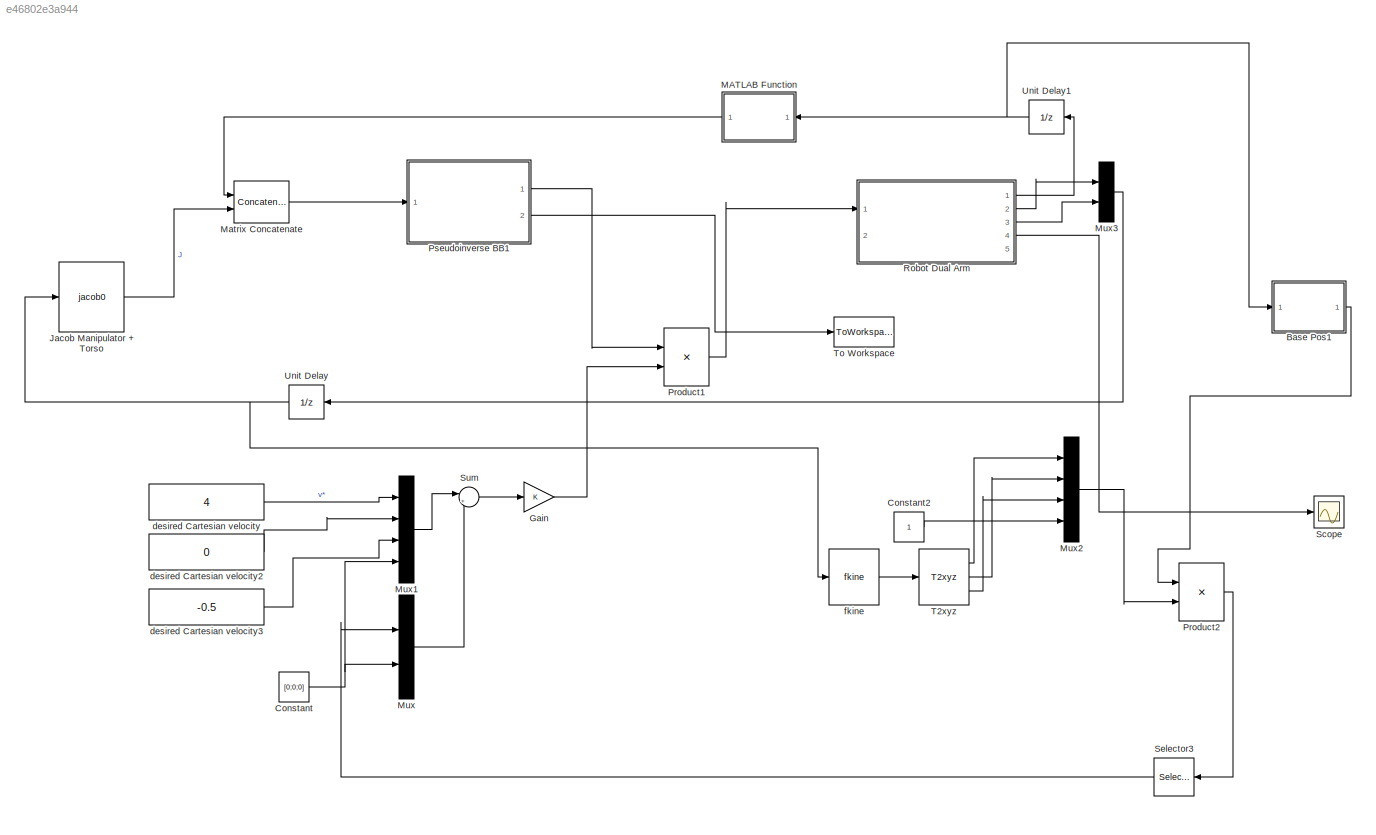
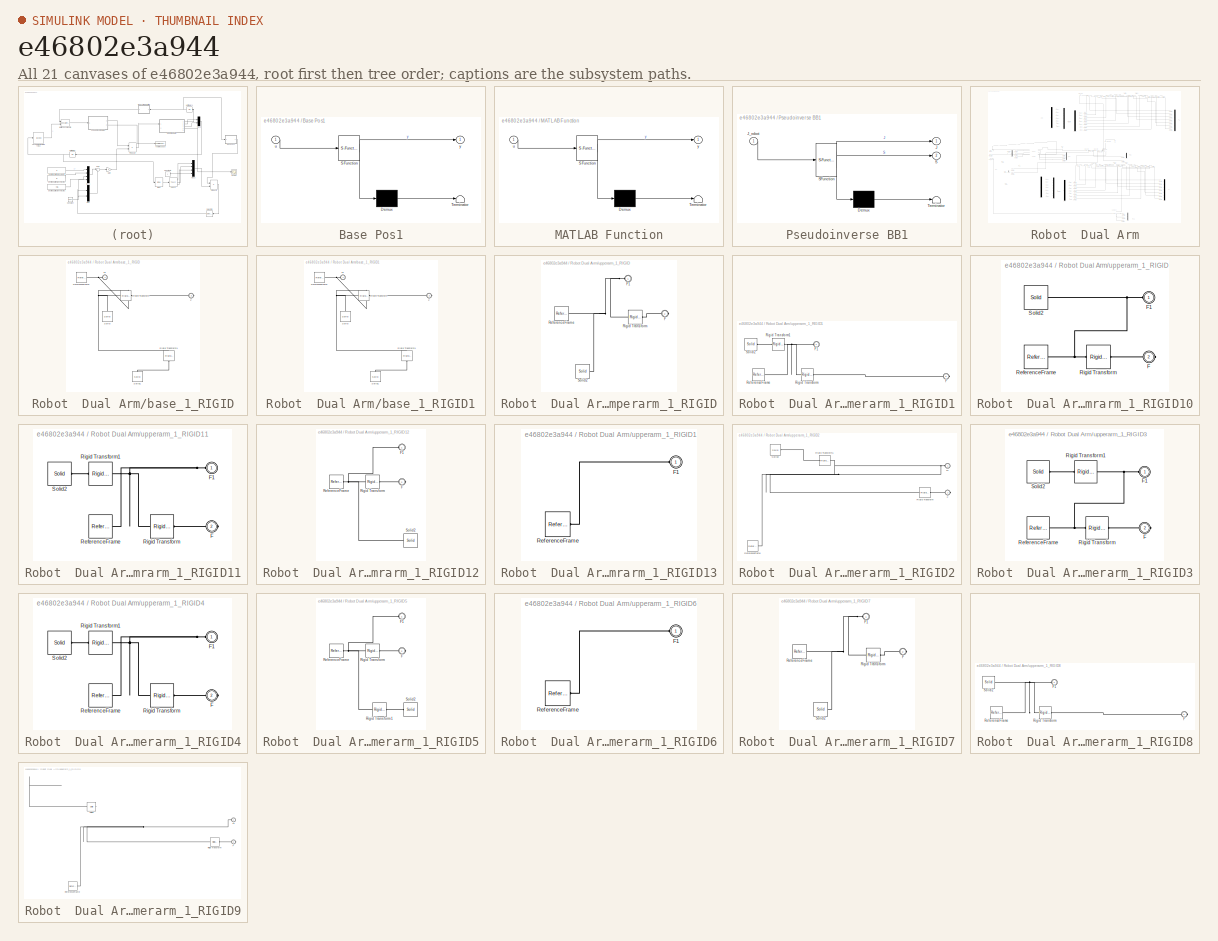
[diagram: thumbnail index - all 21 canvases of the model, root first then tree order]
MODEL slx_e46802e3a944
KIND model
CONFIG AbsTol = auto
CONFIG FixedStep = 0.01
CONFIG MaxStep = auto
CONFIG MinStep = auto
CONFIG RelTol = 1e-3
CONFIG SampleTimeConstraint = Unconstrained
CONFIG Solver = FixedStepAuto
CONFIG SolverMode = Auto
CONFIG SolverName = FixedStepAuto
CONFIG StartTime = 0.0
CONFIG StopTime = 100
BLOCK [SubSystem] Base Pos1
  ErrorFcn = Stateflow.Translate.translate
  PermitHierarchicalResolution = ExplicitOnly
  Ports = [1, 1]
  RequestExecContextInheritance = off
  SFBlockType = MATLAB Function
  TreatAsAtomicUnit = on
  Variant = off
BLOCK [Demux] Base Pos1/ Demux 
  Outputs = 1
  Ports = [1, 1]
BLOCK [S-Function] Base Pos1/ SFunction 
  EnableBusSupport = on
  FunctionName = sf_sfun
  Parameters = torso_link
  PortCounts = [1 2]
  Ports = [1, 2]
  SFunctionDeploymentMode = off
  Tag = Stateflow S-Function cob4_5 4
BLOCK [Terminator] Base Pos1/ Terminator 
BLOCK [Inport] Base Pos1/u
  IconDisplay = Port number
BLOCK [Outport] Base Pos1/y
  IconDisplay = Port number
BLOCK [Constant] Constant
  SampleTime = -1
  Value = [0;0;0]
BLOCK [Constant] Constant2
  SampleTime = -1
BLOCK [Gain] Gain
  OutDataTypeStr = Inherit: Inherit via internal rule
  ParamDataTypeStr = Inherit: Inherit via internal rule
  SaturateOnIntegerOverflow = off
BLOCK [Reference] Jacob Manipulator +  Torso   REF=roblocks/Kinematics/jacob0  (lib defined in mdl_2a292b13c81b, mdl_69400f8cfe22, +12 more)

  Ports = [1, 1]
  SourceBlock = roblocks/Kinematics/jacob0
BLOCK [SubSystem] MATLAB Function
  ErrorFcn = Stateflow.Translate.translate
  PermitHierarchicalResolution = ExplicitOnly
  Ports = [1, 1]
  RequestExecContextInheritance = off
  SFBlockType = MATLAB Function
  TreatAsAtomicUnit = on
  Variant = off
BLOCK [Demux] MATLAB Function/ Demux 
  Outputs = 1
  Ports = [1, 1]
BLOCK [S-Function] MATLAB Function/ SFunction 
  EnableBusSupport = on
  FunctionName = sf_sfun
  PortCounts = [1 2]
  Ports = [1, 2]
  SFunctionDeploymentMode = off
  Tag = Stateflow S-Function cob4_5 2
BLOCK [Terminator] MATLAB Function/ Terminator 
BLOCK [Inport] MATLAB Function/u
  IconDisplay = Port number
BLOCK [Outport] MATLAB Function/y
  IconDisplay = Port number
BLOCK [Concatenate] Matrix Concatenate
  ConcatenateDimension = 2
  Mode = Multidimensional array
  Ports = [2, 1]
BLOCK [Mux] Mux
  DisplayOption = bar
  Inputs = 2
  Ports = [2, 1]
BLOCK [Mux] Mux1
  DisplayOption = bar
  Ports = [4, 1]
BLOCK [Mux] Mux2
  DisplayOption = bar
  Ports = [4, 1]
BLOCK [Mux] Mux3
  DisplayOption = bar
  Inputs = 2
  Ports = [2, 1]
BLOCK [Product] Product1
  InputSameDT = off
  Multiplication = Matrix(*)
  Ports = [2, 1]
  RndMeth = Floor
BLOCK [Product] Product2
  InputSameDT = off
  Multiplication = Matrix(*)
  Ports = [2, 1]
  RndMeth = Floor
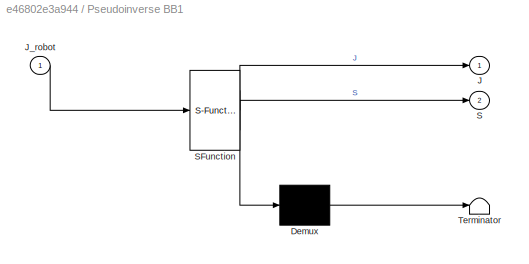
BLOCK [SubSystem] Pseudoinverse BB1
  ErrorFcn = Stateflow.Translate.translate
  PermitHierarchicalResolution = ExplicitOnly
  Ports = [1, 2]
  RequestExecContextInheritance = off
  SFBlockType = MATLAB Function
  TreatAsAtomicUnit = on
  Variant = off
BLOCK [Demux] Pseudoinverse BB1/ Demux 
  Outputs = 1
  Ports = [1, 1]
BLOCK [S-Function] Pseudoinverse BB1/ SFunction 
  EnableBusSupport = on
  FunctionName = sf_sfun
  PortCounts = [1 3]
  Ports = [1, 3]
  SFunctionDeploymentMode = off
  Tag = Stateflow S-Function cob4_5 1
BLOCK [Terminator] Pseudoinverse BB1/ Terminator 
BLOCK [Outport] Pseudoinverse BB1/J
  IconDisplay = Port number
BLOCK [Inport] Pseudoinverse BB1/J_robot
  IconDisplay = Port number
BLOCK [Outport] Pseudoinverse BB1/S
  IconDisplay = Port number
  Port = 2
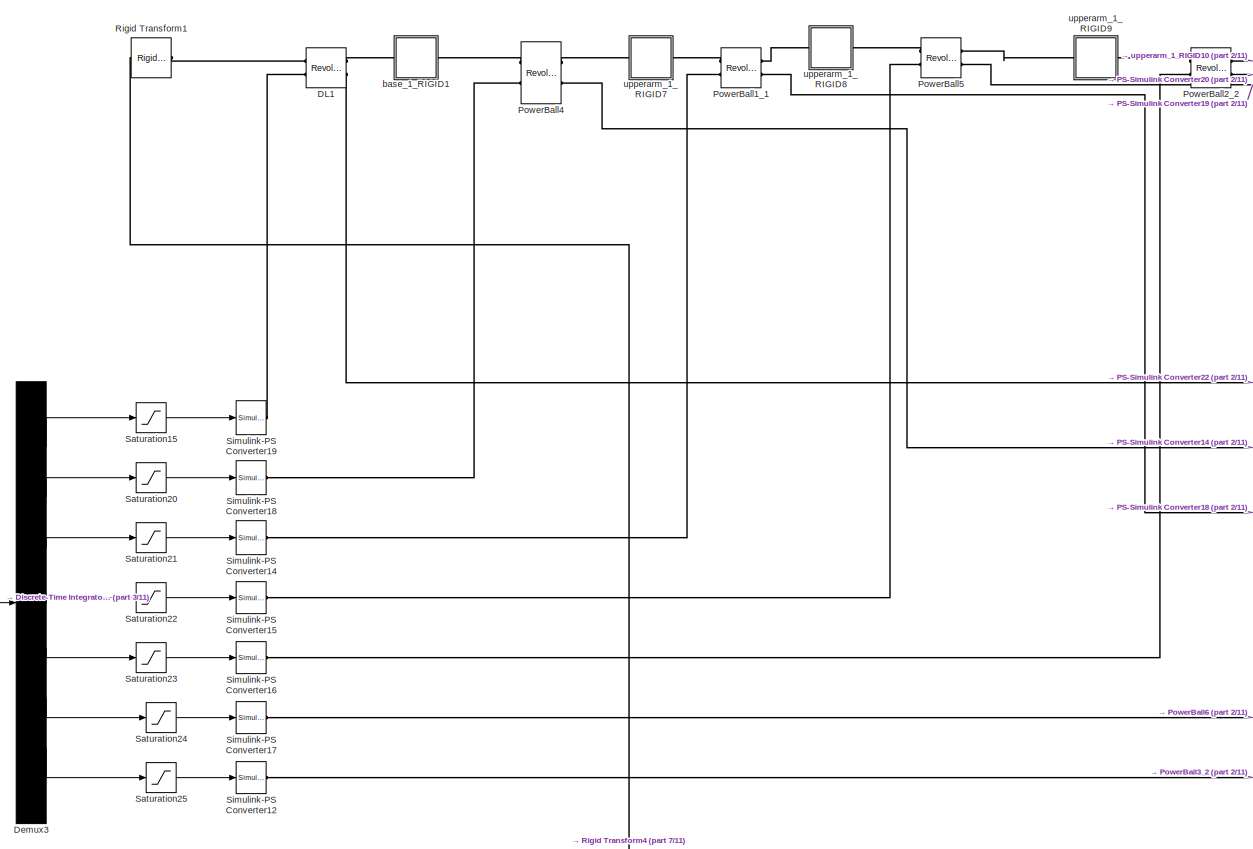
[diagram: Robot  Dual Arm - part 1/11, top center region]
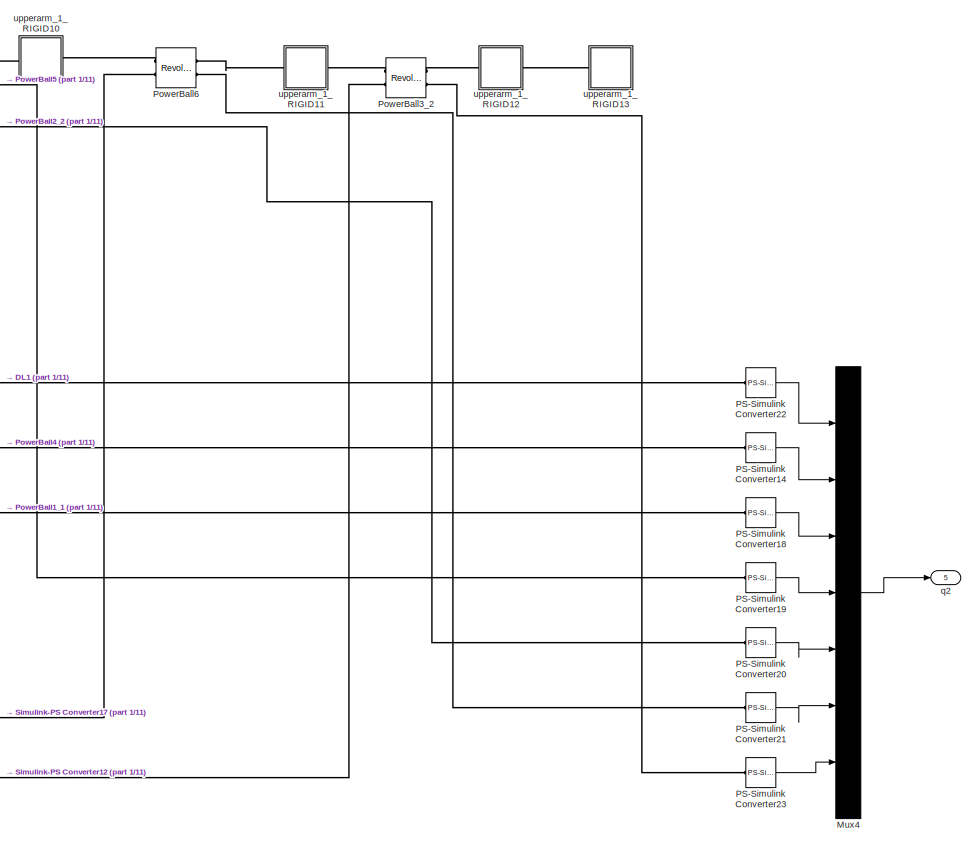
[diagram: Robot  Dual Arm - part 2/11, top right region]
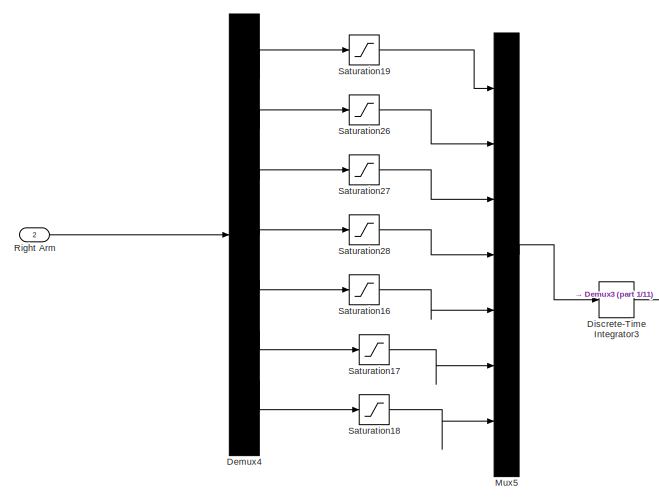
[diagram: Robot  Dual Arm - part 3/11, top center region]
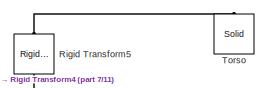
[diagram: Robot  Dual Arm - part 4/11, central region]
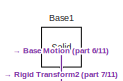
[diagram: Robot  Dual Arm - part 5/11, central region]
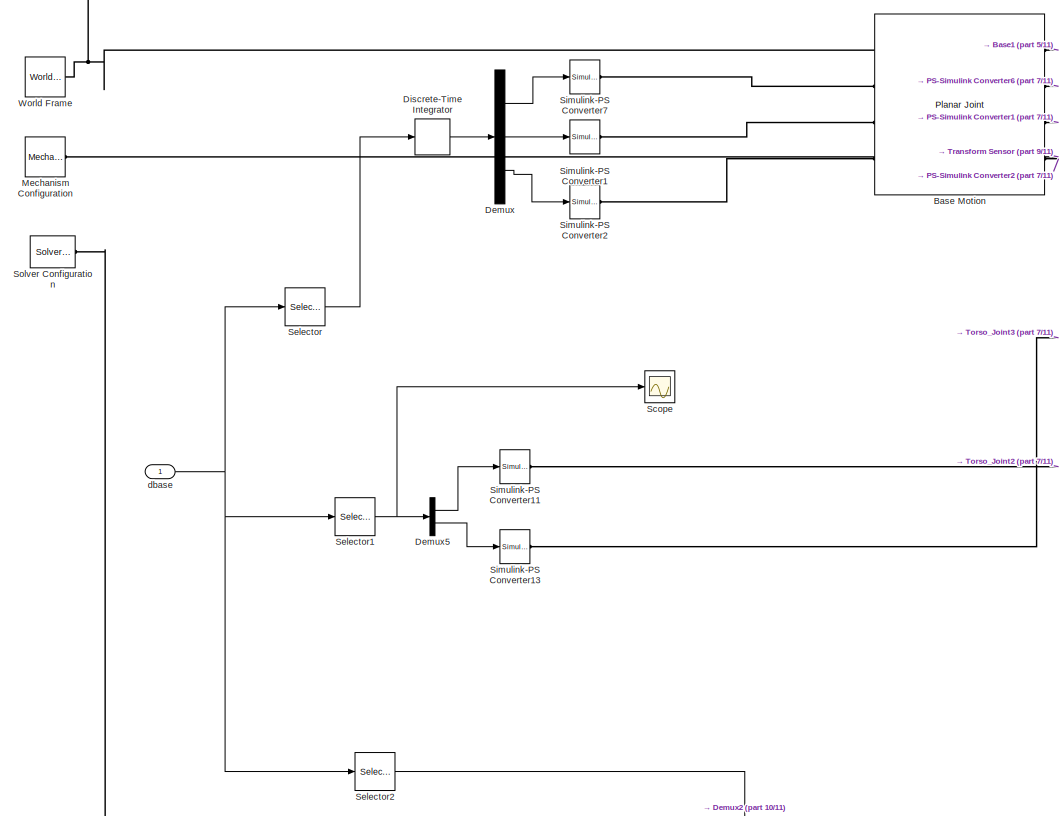
[diagram: Robot  Dual Arm - part 6/11, middle left region]
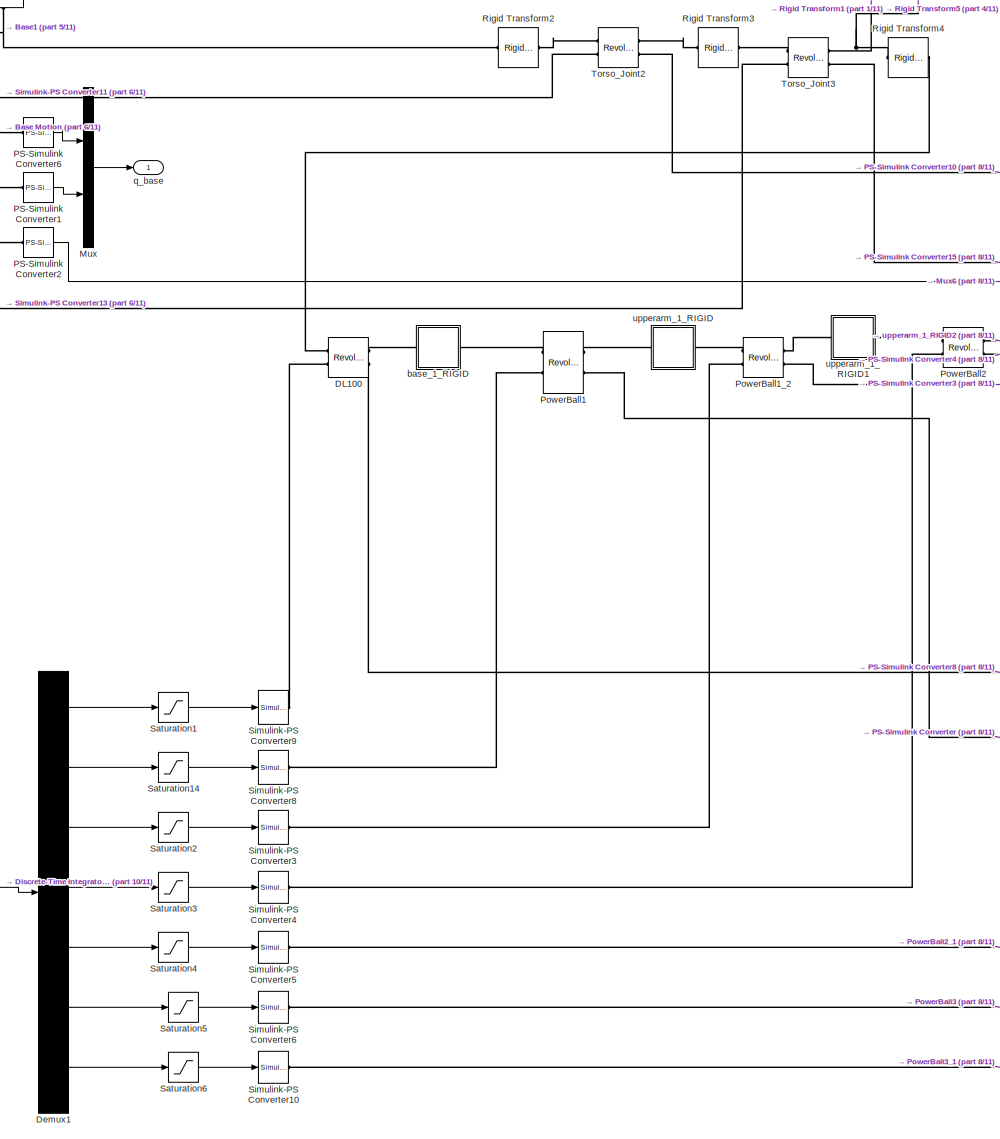
[diagram: Robot  Dual Arm - part 7/11, central region]
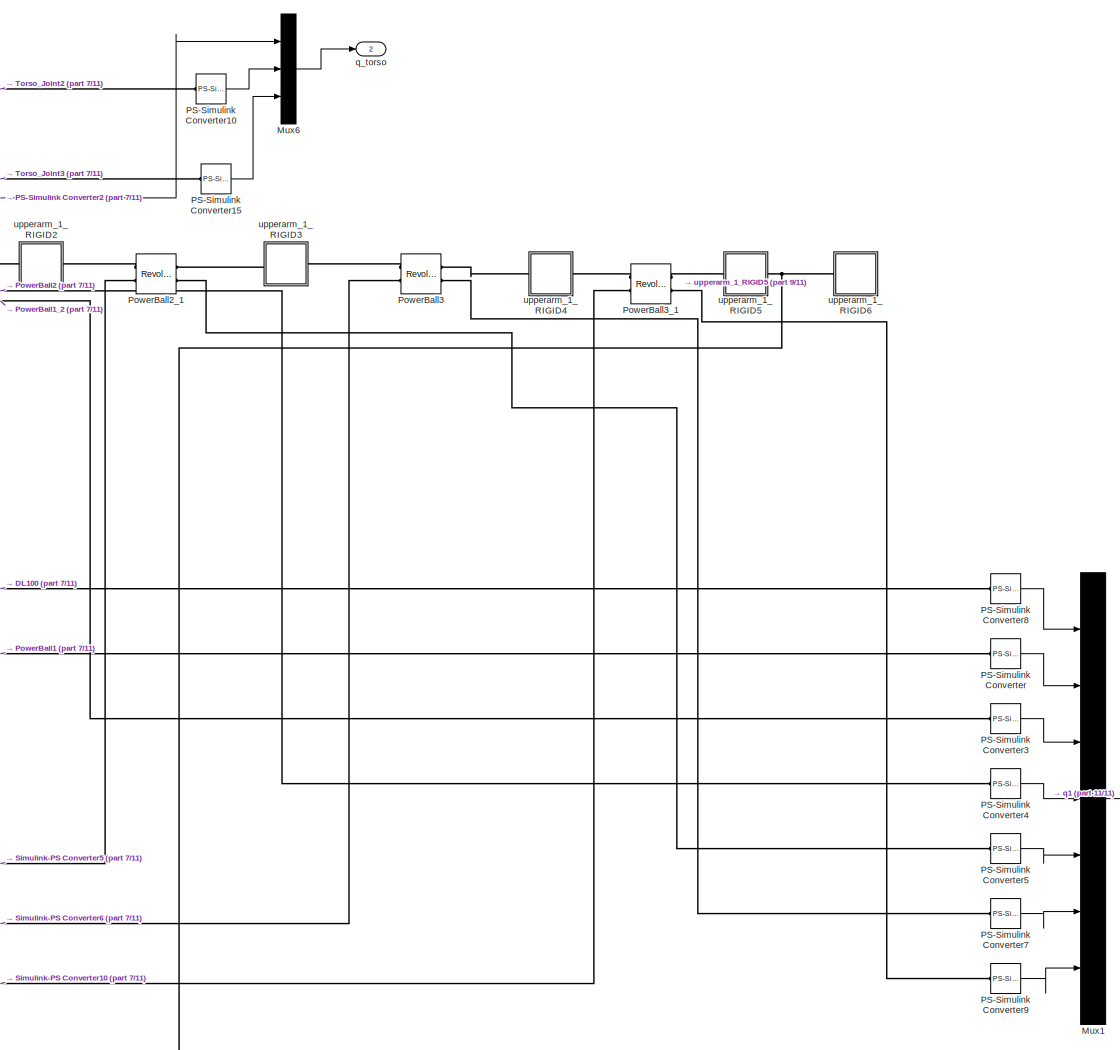
[diagram: Robot  Dual Arm - part 8/11, middle right region]
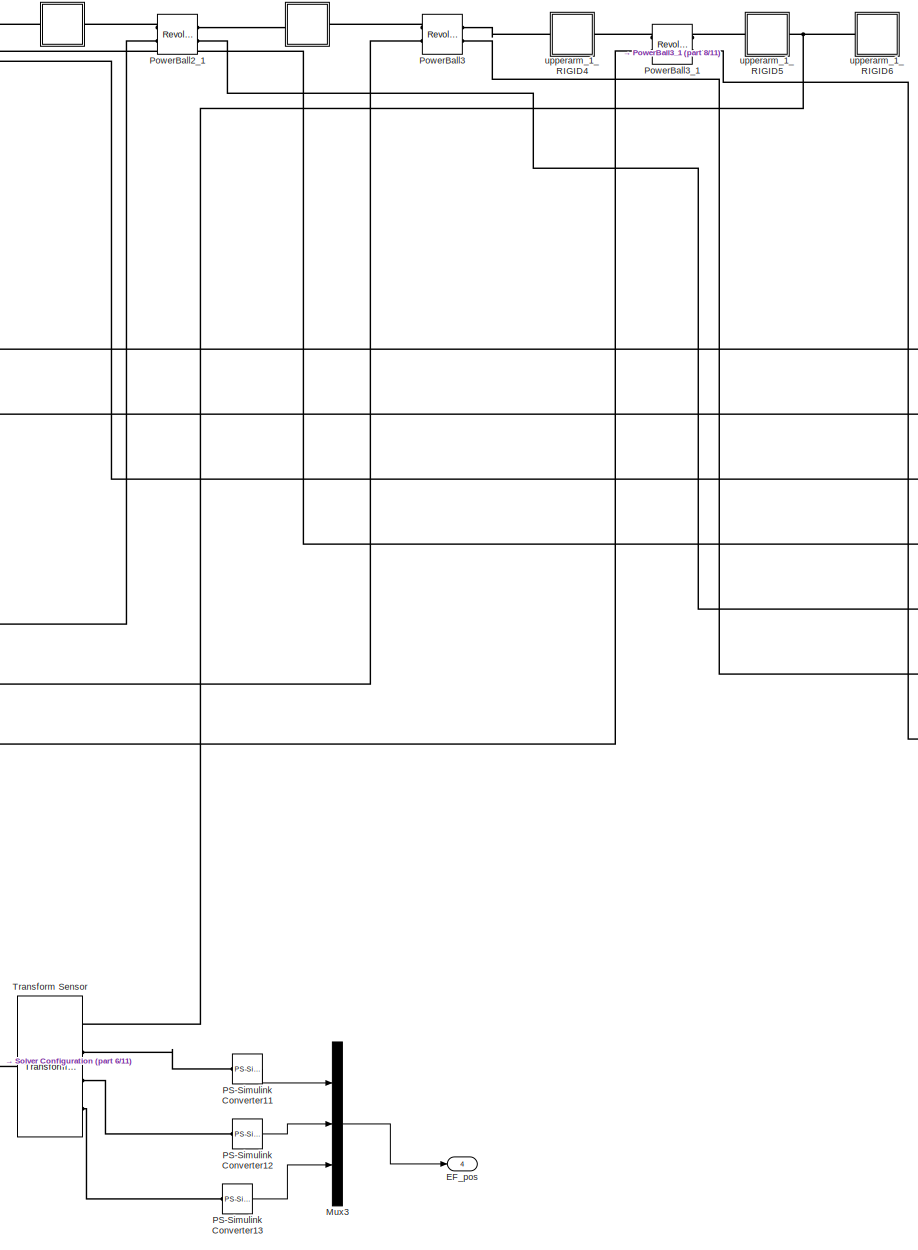
[diagram: Robot  Dual Arm - part 9/11, bottom right region]
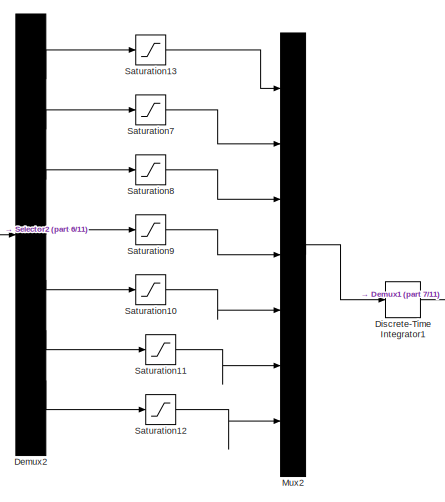
[diagram: Robot  Dual Arm - part 10/11, bottom left region]
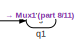
[diagram: Robot  Dual Arm - part 11/11, bottom right region]
BLOCK [SubSystem] Robot  Dual Arm
  Ports = [2, 5]
  RequestExecContextInheritance = off
  TreatAsAtomicUnit = on
  Variant = off
BLOCK [Reference] Robot  Dual Arm/Base Motion  REF=sm_lib/Joints/Planar Joint
  Ports = [0, 0, 0, 0, 0, 4, 4]
  SourceBlock = sm_lib/Joints/Planar Joint
  SourceType = Planar Joint
BLOCK [Reference] Robot  Dual Arm/Base1  REF=sm_lib/Body Elements/Solid
  Ports = [0, 0, 0, 0, 0, 0, 1]
  SourceBlock = sm_lib/Body Elements/Solid
  SourceType = Solid
BLOCK [Reference] Robot  Dual Arm/DL1  REF=sm_lib/Joints/Revolute Joint
  Ports = [0, 0, 0, 0, 0, 2, 2]
  SourceBlock = sm_lib/Joints/Revolute Joint
  SourceType = Revolute Joint
BLOCK [Reference] Robot  Dual Arm/DL100  REF=sm_lib/Joints/Revolute Joint
  Ports = [0, 0, 0, 0, 0, 2, 2]
  SourceBlock = sm_lib/Joints/Revolute Joint
  SourceType = Revolute Joint
BLOCK [Demux] Robot  Dual Arm/Demux
  DisplayOption = bar
  Outputs = 3
  Ports = [1, 3]
BLOCK [Demux] Robot  Dual Arm/Demux1
  DisplayOption = bar
  Outputs = n(1)-1
  Ports = [1, 7]
BLOCK [Demux] Robot  Dual Arm/Demux2
  DisplayOption = bar
  Outputs = n(1)-1
  Ports = [1, 7]
BLOCK [Demux] Robot  Dual Arm/Demux3
  DisplayOption = bar
  Outputs = n(1)-1
  Ports = [1, 7]
BLOCK [Demux] Robot  Dual Arm/Demux4
  DisplayOption = bar
  Outputs = n(1)-1
  Ports = [1, 7]
BLOCK [Demux] Robot  Dual Arm/Demux5
  DisplayOption = bar
  Outputs = 2
  Ports = [1, 2]
BLOCK [DiscreteIntegrator] Robot  Dual Arm/Discrete-Time Integrator
  ICPrevOutput = DiscIntNeverNeededParam
  ICPrevScaledInput = DiscIntNeverNeededParam
  InitialCondition = [0;0;0]
  InitialConditionSetting = State (most efficient)
  Ports = [1, 1]
  SampleTime = -1
BLOCK [DiscreteIntegrator] Robot  Dual Arm/Discrete-Time Integrator1
  ICPrevOutput = DiscIntNeverNeededParam
  ICPrevScaledInput = DiscIntNeverNeededParam
  InitialCondition = zeros(n(1)-1,1)
  InitialConditionSetting = State (most efficient)
  Ports = [1, 1]
  SampleTime = -1
BLOCK [DiscreteIntegrator] Robot  Dual Arm/Discrete-Time Integrator3
  ICPrevOutput = DiscIntNeverNeededParam
  ICPrevScaledInput = DiscIntNeverNeededParam
  InitialCondition = zeros(n(1)-1,1)
  InitialConditionSetting = State (most efficient)
  Ports = [1, 1]
  SampleTime = -1
BLOCK [Outport] Robot  Dual Arm/EF_pos
  IconDisplay = Port number
  Port = 4
BLOCK [Reference] Robot  Dual Arm/Mechanism Configuration  REF=sm_lib/Utilities/Mechanism
Configuration
  Ports = [0, 0, 0, 0, 0, 0, 1]
  SourceBlock = sm_lib/Utilities/Mechanism\nConfiguration
  SourceType = Mechanism\nConfiguration
BLOCK [Mux] Robot  Dual Arm/Mux
  DisplayOption = bar
  Inputs = 2
  Ports = [2, 1]
BLOCK [Mux] Robot  Dual Arm/Mux1
  DisplayOption = bar
  Inputs = n(1)-1
  Ports = [7, 1]
BLOCK [Mux] Robot  Dual Arm/Mux2
  DisplayOption = bar
  Inputs = n(1)-1
  Ports = [7, 1]
BLOCK [Mux] Robot  Dual Arm/Mux3
  DisplayOption = bar
  Inputs = 3
  Ports = [3, 1]
BLOCK [Mux] Robot  Dual Arm/Mux4
  DisplayOption = bar
  Inputs = n(1)-1
  Ports = [7, 1]
BLOCK [Mux] Robot  Dual Arm/Mux5
  DisplayOption = bar
  Inputs = n(1)-1
  Ports = [7, 1]
BLOCK [Mux] Robot  Dual Arm/Mux6
  DisplayOption = bar
  Inputs = 3
  Ports = [3, 1]
BLOCK [Reference] Robot  Dual Arm/PS-Simulink Converter  REF=nesl_utility/PS-Simulink
Converter
  Ports = [0, 1, 0, 0, 0, 1]
  SourceBlock = nesl_utility/PS-Simulink\nConverter
  SourceType = PS-Simulink\nConverter
BLOCK [Reference] Robot  Dual Arm/PS-Simulink Converter1  REF=nesl_utility/PS-Simulink
Converter
  Ports = [0, 1, 0, 0, 0, 1]
  SourceBlock = nesl_utility/PS-Simulink\nConverter
  SourceType = PS-Simulink\nConverter
BLOCK [Reference] Robot  Dual Arm/PS-Simulink Converter10  REF=nesl_utility/PS-Simulink
Converter
  Ports = [0, 1, 0, 0, 0, 1]
  SourceBlock = nesl_utility/PS-Simulink\nConverter
  SourceType = PS-Simulink\nConverter
BLOCK [Reference] Robot  Dual Arm/PS-Simulink Converter11  REF=nesl_utility/PS-Simulink
Converter
  Ports = [0, 1, 0, 0, 0, 1]
  SourceBlock = nesl_utility/PS-Simulink\nConverter
  SourceType = PS-Simulink\nConverter
BLOCK [Reference] Robot  Dual Arm/PS-Simulink Converter12  REF=nesl_utility/PS-Simulink
Converter
  Ports = [0, 1, 0, 0, 0, 1]
  SourceBlock = nesl_utility/PS-Simulink\nConverter
  SourceType = PS-Simulink\nConverter
BLOCK [Reference] Robot  Dual Arm/PS-Simulink Converter13  REF=nesl_utility/PS-Simulink
Converter
  Ports = [0, 1, 0, 0, 0, 1]
  SourceBlock = nesl_utility/PS-Simulink\nConverter
  SourceType = PS-Simulink\nConverter
BLOCK [Reference] Robot  Dual Arm/PS-Simulink Converter14  REF=nesl_utility/PS-Simulink
Converter
  Ports = [0, 1, 0, 0, 0, 1]
  SourceBlock = nesl_utility/PS-Simulink\nConverter
  SourceType = PS-Simulink\nConverter
BLOCK [Reference] Robot  Dual Arm/PS-Simulink Converter15  REF=nesl_utility/PS-Simulink
Converter
  Ports = [0, 1, 0, 0, 0, 1]
  SourceBlock = nesl_utility/PS-Simulink\nConverter
  SourceType = PS-Simulink\nConverter
BLOCK [Reference] Robot  Dual Arm/PS-Simulink Converter18  REF=nesl_utility/PS-Simulink
Converter
  Ports = [0, 1, 0, 0, 0, 1]
  SourceBlock = nesl_utility/PS-Simulink\nConverter
  SourceType = PS-Simulink\nConverter
BLOCK [Reference] Robot  Dual Arm/PS-Simulink Converter19  REF=nesl_utility/PS-Simulink
Converter
  Ports = [0, 1, 0, 0, 0, 1]
  SourceBlock = nesl_utility/PS-Simulink\nConverter
  SourceType = PS-Simulink\nConverter
BLOCK [Reference] Robot  Dual Arm/PS-Simulink Converter2  REF=nesl_utility/PS-Simulink
Converter
  Ports = [0, 1, 0, 0, 0, 1]
  SourceBlock = nesl_utility/PS-Simulink\nConverter
  SourceType = PS-Simulink\nConverter
BLOCK [Reference] Robot  Dual Arm/PS-Simulink Converter20  REF=nesl_utility/PS-Simulink
Converter
  Ports = [0, 1, 0, 0, 0, 1]
  SourceBlock = nesl_utility/PS-Simulink\nConverter
  SourceType = PS-Simulink\nConverter
BLOCK [Reference] Robot  Dual Arm/PS-Simulink Converter21  REF=nesl_utility/PS-Simulink
Converter
  Ports = [0, 1, 0, 0, 0, 1]
  SourceBlock = nesl_utility/PS-Simulink\nConverter
  SourceType = PS-Simulink\nConverter
BLOCK [Reference] Robot  Dual Arm/PS-Simulink Converter22  REF=nesl_utility/PS-Simulink
Converter
  Ports = [0, 1, 0, 0, 0, 1]
  SourceBlock = nesl_utility/PS-Simulink\nConverter
  SourceType = PS-Simulink\nConverter
BLOCK [Reference] Robot  Dual Arm/PS-Simulink Converter23  REF=nesl_utility/PS-Simulink
Converter
  Ports = [0, 1, 0, 0, 0, 1]
  SourceBlock = nesl_utility/PS-Simulink\nConverter
  SourceType = PS-Simulink\nConverter
BLOCK [Reference] Robot  Dual Arm/PS-Simulink Converter3  REF=nesl_utility/PS-Simulink
Converter
  Ports = [0, 1, 0, 0, 0, 1]
  SourceBlock = nesl_utility/PS-Simulink\nConverter
  SourceType = PS-Simulink\nConverter
BLOCK [Reference] Robot  Dual Arm/PS-Simulink Converter4  REF=nesl_utility/PS-Simulink
Converter
  Ports = [0, 1, 0, 0, 0, 1]
  SourceBlock = nesl_utility/PS-Simulink\nConverter
  SourceType = PS-Simulink\nConverter
BLOCK [Reference] Robot  Dual Arm/PS-Simulink Converter5  REF=nesl_utility/PS-Simulink
Converter
  Ports = [0, 1, 0, 0, 0, 1]
  SourceBlock = nesl_utility/PS-Simulink\nConverter
  SourceType = PS-Simulink\nConverter
BLOCK [Reference] Robot  Dual Arm/PS-Simulink Converter6  REF=nesl_utility/PS-Simulink
Converter
  Ports = [0, 1, 0, 0, 0, 1]
  SourceBlock = nesl_utility/PS-Simulink\nConverter
  SourceType = PS-Simulink\nConverter
BLOCK [Reference] Robot  Dual Arm/PS-Simulink Converter7  REF=nesl_utility/PS-Simulink
Converter
  Ports = [0, 1, 0, 0, 0, 1]
  SourceBlock = nesl_utility/PS-Simulink\nConverter
  SourceType = PS-Simulink\nConverter
BLOCK [Reference] Robot  Dual Arm/PS-Simulink Converter8  REF=nesl_utility/PS-Simulink
Converter
  Ports = [0, 1, 0, 0, 0, 1]
  SourceBlock = nesl_utility/PS-Simulink\nConverter
  SourceType = PS-Simulink\nConverter
BLOCK [Reference] Robot  Dual Arm/PS-Simulink Converter9  REF=nesl_utility/PS-Simulink
Converter
  Ports = [0, 1, 0, 0, 0, 1]
  SourceBlock = nesl_utility/PS-Simulink\nConverter
  SourceType = PS-Simulink\nConverter
BLOCK [Reference] Robot  Dual Arm/PowerBall1  REF=sm_lib/Joints/Revolute Joint
  Ports = [0, 0, 0, 0, 0, 2, 2]
  SourceBlock = sm_lib/Joints/Revolute Joint
  SourceType = Revolute Joint
BLOCK [Reference] Robot  Dual Arm/PowerBall1_1  REF=sm_lib/Joints/Revolute Joint
  Ports = [0, 0, 0, 0, 0, 2, 2]
  SourceBlock = sm_lib/Joints/Revolute Joint
  SourceType = Revolute Joint
BLOCK [Reference] Robot  Dual Arm/PowerBall1_2  REF=sm_lib/Joints/Revolute Joint
  Ports = [0, 0, 0, 0, 0, 2, 2]
  SourceBlock = sm_lib/Joints/Revolute Joint
  SourceType = Revolute Joint
BLOCK [Reference] Robot  Dual Arm/PowerBall2  REF=sm_lib/Joints/Revolute Joint
  Ports = [0, 0, 0, 0, 0, 2, 2]
  SourceBlock = sm_lib/Joints/Revolute Joint
  SourceType = Revolute Joint
BLOCK [Reference] Robot  Dual Arm/PowerBall2_1  REF=sm_lib/Joints/Revolute Joint
  Ports = [0, 0, 0, 0, 0, 2, 2]
  SourceBlock = sm_lib/Joints/Revolute Joint
  SourceType = Revolute Joint
BLOCK [Reference] Robot  Dual Arm/PowerBall2_2  REF=sm_lib/Joints/Revolute Joint
  Ports = [0, 0, 0, 0, 0, 2, 2]
  SourceBlock = sm_lib/Joints/Revolute Joint
  SourceType = Revolute Joint
BLOCK [Reference] Robot  Dual Arm/PowerBall3  REF=sm_lib/Joints/Revolute Joint
  Ports = [0, 0, 0, 0, 0, 2, 2]
  SourceBlock = sm_lib/Joints/Revolute Joint
  SourceType = Revolute Joint
BLOCK [Reference] Robot  Dual Arm/PowerBall3_1  REF=sm_lib/Joints/Revolute Joint
  Ports = [0, 0, 0, 0, 0, 2, 2]
  SourceBlock = sm_lib/Joints/Revolute Joint
  SourceType = Revolute Joint
BLOCK [Reference] Robot  Dual Arm/PowerBall3_2  REF=sm_lib/Joints/Revolute Joint
  Ports = [0, 0, 0, 0, 0, 2, 2]
  SourceBlock = sm_lib/Joints/Revolute Joint
  SourceType = Revolute Joint
BLOCK [Reference] Robot  Dual Arm/PowerBall4  REF=sm_lib/Joints/Revolute Joint
  Ports = [0, 0, 0, 0, 0, 2, 2]
  SourceBlock = sm_lib/Joints/Revolute Joint
  SourceType = Revolute Joint
BLOCK [Reference] Robot  Dual Arm/PowerBall5  REF=sm_lib/Joints/Revolute Joint
  Ports = [0, 0, 0, 0, 0, 2, 2]
  SourceBlock = sm_lib/Joints/Revolute Joint
  SourceType = Revolute Joint
BLOCK [Reference] Robot  Dual Arm/PowerBall6  REF=sm_lib/Joints/Revolute Joint
  Ports = [0, 0, 0, 0, 0, 2, 2]
  SourceBlock = sm_lib/Joints/Revolute Joint
  SourceType = Revolute Joint
BLOCK [Inport] Robot  Dual Arm/Right Arm
  IconDisplay = Port number
  Port = 2
BLOCK [Reference] Robot  Dual Arm/Rigid Transform1  REF=sm_lib/Frames and
Transforms/Rigid
Transform
  Ports = [0, 0, 0, 0, 0, 1, 1]
  SourceBlock = sm_lib/Frames and\nTransforms/Rigid\nTransform
  SourceType = Rigid\nTransform
BLOCK [Reference] Robot  Dual Arm/Rigid Transform2  REF=sm_lib/Frames and
Transforms/Rigid
Transform
  Ports = [0, 0, 0, 0, 0, 1, 1]
  SourceBlock = sm_lib/Frames and\nTransforms/Rigid\nTransform
  SourceType = Rigid\nTransform
BLOCK [Reference] Robot  Dual Arm/Rigid Transform3  REF=sm_lib/Frames and
Transforms/Rigid
Transform
  Ports = [0, 0, 0, 0, 0, 1, 1]
  SourceBlock = sm_lib/Frames and\nTransforms/Rigid\nTransform
  SourceType = Rigid\nTransform
BLOCK [Reference] Robot  Dual Arm/Rigid Transform4  REF=sm_lib/Frames and
Transforms/Rigid
Transform
  Ports = [0, 0, 0, 0, 0, 1, 1]
  SourceBlock = sm_lib/Frames and\nTransforms/Rigid\nTransform
  SourceType = Rigid\nTransform
BLOCK [Reference] Robot  Dual Arm/Rigid Transform5  REF=sm_lib/Frames and
Transforms/Rigid
Transform
  Ports = [0, 0, 0, 0, 0, 1, 1]
  SourceBlock = sm_lib/Frames and\nTransforms/Rigid\nTransform
  SourceType = Rigid\nTransform
BLOCK [Saturate] Robot  Dual Arm/Saturation1
  InputPortMap = u0
  LowerLimit = arm_config.joint.limits(2)
  Ports = [1, 1]
  UpperLimit = arm_config.joint.limits(1)
BLOCK [Saturate] Robot  Dual Arm/Saturation10
  InputPortMap = u0
  LowerLimit = -arm_config.joint.speed_limits(5)
  Ports = [1, 1]
  UpperLimit = arm_config.joint.speed_limits(5)
BLOCK [Saturate] Robot  Dual Arm/Saturation11
  InputPortMap = u0
  LowerLimit = -arm_config.joint.speed_limits(6)
  Ports = [1, 1]
  UpperLimit = arm_config.joint.speed_limits(6)
BLOCK [Saturate] Robot  Dual Arm/Saturation12
  InputPortMap = u0
  LowerLimit = -arm_config.joint.speed_limits(7)
  Ports = [1, 1]
  UpperLimit = arm_config.joint.speed_limits(7)
BLOCK [Saturate] Robot  Dual Arm/Saturation13
  InputPortMap = u0
  LowerLimit = -arm_config.joint.speed_limits(1)
  Ports = [1, 1]
  UpperLimit = arm_config.joint.speed_limits(1)
BLOCK [Saturate] Robot  Dual Arm/Saturation14
  InputPortMap = u0
  LowerLimit = arm_config.joint.limits(4)
  Ports = [1, 1]
  UpperLimit = arm_config.joint.limits(3)
BLOCK [Saturate] Robot  Dual Arm/Saturation15
  InputPortMap = u0
  LowerLimit = arm_config.joint.limits(2)
  Ports = [1, 1]
  UpperLimit = arm_config.joint.limits(1)
BLOCK [Saturate] Robot  Dual Arm/Saturation16
  InputPortMap = u0
  LowerLimit = -arm_config.joint.speed_limits(5)
  Ports = [1, 1]
  UpperLimit = arm_config.joint.speed_limits(5)
BLOCK [Saturate] Robot  Dual Arm/Saturation17
  InputPortMap = u0
  LowerLimit = -arm_config.joint.speed_limits(6)
  Ports = [1, 1]
  UpperLimit = arm_config.joint.speed_limits(6)
BLOCK [Saturate] Robot  Dual Arm/Saturation18
  InputPortMap = u0
  LowerLimit = -arm_config.joint.speed_limits(7)
  Ports = [1, 1]
  UpperLimit = arm_config.joint.speed_limits(7)
BLOCK [Saturate] Robot  Dual Arm/Saturation19
  InputPortMap = u0
  LowerLimit = -arm_config.joint.speed_limits(1)
  Ports = [1, 1]
  UpperLimit = arm_config.joint.speed_limits(1)
BLOCK [Saturate] Robot  Dual Arm/Saturation2
  InputPortMap = u0
  LowerLimit = arm_config.joint.limits(6)
  Ports = [1, 1]
  UpperLimit = arm_config.joint.limits(5)
BLOCK [Saturate] Robot  Dual Arm/Saturation20
  InputPortMap = u0
  LowerLimit = arm_config.joint.limits(4)
  Ports = [1, 1]
  UpperLimit = arm_config.joint.limits(3)
BLOCK [Saturate] Robot  Dual Arm/Saturation21
  InputPortMap = u0
  LowerLimit = arm_config.joint.limits(6)
  Ports = [1, 1]
  UpperLimit = arm_config.joint.limits(5)
BLOCK [Saturate] Robot  Dual Arm/Saturation22
  InputPortMap = u0
  LowerLimit = arm_config.joint.limits(8)
  Ports = [1, 1]
  UpperLimit = arm_config.joint.limits(7)
BLOCK [Saturate] Robot  Dual Arm/Saturation23
  InputPortMap = u0
  LowerLimit = arm_config.joint.limits(10)
  Ports = [1, 1]
  UpperLimit = arm_config.joint.limits(9)
BLOCK [Saturate] Robot  Dual Arm/Saturation24
  InputPortMap = u0
  LowerLimit = arm_config.joint.limits(12)
  Ports = [1, 1]
  UpperLimit = arm_config.joint.limits(11)
BLOCK [Saturate] Robot  Dual Arm/Saturation25
  InputPortMap = u0
  LowerLimit = arm_config.joint.limits(14)
  Ports = [1, 1]
  UpperLimit = arm_config.joint.limits(13)
BLOCK [Saturate] Robot  Dual Arm/Saturation26
  InputPortMap = u0
  LowerLimit = -arm_config.joint.speed_limits(2)
  Ports = [1, 1]
  UpperLimit = arm_config.joint.speed_limits(2)
BLOCK [Saturate] Robot  Dual Arm/Saturation27
  InputPortMap = u0
  LowerLimit = -arm_config.joint.speed_limits(3)
  Ports = [1, 1]
  UpperLimit = arm_config.joint.speed_limits(3)
BLOCK [Saturate] Robot  Dual Arm/Saturation28
  InputPortMap = u0
  LowerLimit = -arm_config.joint.speed_limits(4)
  Ports = [1, 1]
  UpperLimit = arm_config.joint.speed_limits(4)
BLOCK [Saturate] Robot  Dual Arm/Saturation3
  InputPortMap = u0
  LowerLimit = arm_config.joint.limits(8)
  Ports = [1, 1]
  UpperLimit = arm_config.joint.limits(7)
BLOCK [Saturate] Robot  Dual Arm/Saturation4
  InputPortMap = u0
  LowerLimit = arm_config.joint.limits(10)
  Ports = [1, 1]
  UpperLimit = arm_config.joint.limits(9)
BLOCK [Saturate] Robot  Dual Arm/Saturation5
  InputPortMap = u0
  LowerLimit = arm_config.joint.limits(12)
  Ports = [1, 1]
  UpperLimit = arm_config.joint.limits(11)
BLOCK [Saturate] Robot  Dual Arm/Saturation6
  InputPortMap = u0
  LowerLimit = arm_config.joint.limits(14)
  Ports = [1, 1]
  UpperLimit = arm_config.joint.limits(13)
BLOCK [Saturate] Robot  Dual Arm/Saturation7
  InputPortMap = u0
  LowerLimit = -arm_config.joint.speed_limits(2)
  Ports = [1, 1]
  UpperLimit = arm_config.joint.speed_limits(2)
BLOCK [Saturate] Robot  Dual Arm/Saturation8
  InputPortMap = u0
  LowerLimit = -arm_config.joint.speed_limits(3)
  Ports = [1, 1]
  UpperLimit = arm_config.joint.speed_limits(3)
BLOCK [Saturate] Robot  Dual Arm/Saturation9
  InputPortMap = u0
  LowerLimit = -arm_config.joint.speed_limits(4)
  Ports = [1, 1]
  UpperLimit = arm_config.joint.speed_limits(4)
BLOCK [Scope] Robot  Dual Arm/Scope
  Ports = [1]
  ScopeSpecificationString = Simulink.scopes.TimeScopeBlockCfg('CurrentConfiguration', extmgr.ConfigurationSet(extmgr.Configuration('Core','General UI',true),extmgr.Configuration('Core','Source UI',true),extmgr.Configuration('Sources','WiredSimulink',true,'DataLoggingVariableName','ScopeData1'),extmgr.Configuration('Visuals','Time Domain',true,'SerializedDisplays',{struct('MinYLimReal','-0.03352','MaxYLimReal','0.06211','YLab...<+1457ch>
BLOCK [Selector] Robot  Dual Arm/Selector
  IndexOptions = Index vector (dialog)
  Indices = [1:3]
  InputPortWidth = n(1)+4
  OutputSizes = 1
  Ports = [1, 1]
BLOCK [Selector] Robot  Dual Arm/Selector1
  IndexOptions = Index vector (dialog)
  Indices = [4:5]
  InputPortWidth = n(1)+4
  OutputSizes = 1
  Ports = [1, 1]
BLOCK [Selector] Robot  Dual Arm/Selector2
  IndexOptions = Index vector (dialog)
  Indices = [6:12]
  InputPortWidth = n(1)+4
  OutputSizes = 1
  Ports = [1, 1]
BLOCK [Reference] Robot  Dual Arm/Simulink-PS Converter1  REF=nesl_utility/Simulink-PS
Converter
  Ports = [1, 0, 0, 0, 0, 0, 1]
  SourceBlock = nesl_utility/Simulink-PS\nConverter
  SourceType = Simulink-PS\nConverter
BLOCK [Reference] Robot  Dual Arm/Simulink-PS Converter10  REF=nesl_utility/Simulink-PS
Converter
  Ports = [1, 0, 0, 0, 0, 0, 1]
  SourceBlock = nesl_utility/Simulink-PS\nConverter
  SourceType = Simulink-PS\nConverter
BLOCK [Reference] Robot  Dual Arm/Simulink-PS Converter11  REF=nesl_utility/Simulink-PS
Converter
  Ports = [1, 0, 0, 0, 0, 0, 1]
  SourceBlock = nesl_utility/Simulink-PS\nConverter
  SourceType = Simulink-PS\nConverter
BLOCK [Reference] Robot  Dual Arm/Simulink-PS Converter12  REF=nesl_utility/Simulink-PS
Converter
  Ports = [1, 0, 0, 0, 0, 0, 1]
  SourceBlock = nesl_utility/Simulink-PS\nConverter
  SourceType = Simulink-PS\nConverter
BLOCK [Reference] Robot  Dual Arm/Simulink-PS Converter13  REF=nesl_utility/Simulink-PS
Converter
  Ports = [1, 0, 0, 0, 0, 0, 1]
  SourceBlock = nesl_utility/Simulink-PS\nConverter
  SourceType = Simulink-PS\nConverter
BLOCK [Reference] Robot  Dual Arm/Simulink-PS Converter14  REF=nesl_utility/Simulink-PS
Converter
  Ports = [1, 0, 0, 0, 0, 0, 1]
  SourceBlock = nesl_utility/Simulink-PS\nConverter
  SourceType = Simulink-PS\nConverter
BLOCK [Reference] Robot  Dual Arm/Simulink-PS Converter15  REF=nesl_utility/Simulink-PS
Converter
  Ports = [1, 0, 0, 0, 0, 0, 1]
  SourceBlock = nesl_utility/Simulink-PS\nConverter
  SourceType = Simulink-PS\nConverter
BLOCK [Reference] Robot  Dual Arm/Simulink-PS Converter16  REF=nesl_utility/Simulink-PS
Converter
  Ports = [1, 0, 0, 0, 0, 0, 1]
  SourceBlock = nesl_utility/Simulink-PS\nConverter
  SourceType = Simulink-PS\nConverter
BLOCK [Reference] Robot  Dual Arm/Simulink-PS Converter17  REF=nesl_utility/Simulink-PS
Converter
  Ports = [1, 0, 0, 0, 0, 0, 1]
  SourceBlock = nesl_utility/Simulink-PS\nConverter
  SourceType = Simulink-PS\nConverter
BLOCK [Reference] Robot  Dual Arm/Simulink-PS Converter18  REF=nesl_utility/Simulink-PS
Converter
  Ports = [1, 0, 0, 0, 0, 0, 1]
  SourceBlock = nesl_utility/Simulink-PS\nConverter
  SourceType = Simulink-PS\nConverter
BLOCK [Reference] Robot  Dual Arm/Simulink-PS Converter19  REF=nesl_utility/Simulink-PS
Converter
  Ports = [1, 0, 0, 0, 0, 0, 1]
  SourceBlock = nesl_utility/Simulink-PS\nConverter
  SourceType = Simulink-PS\nConverter
BLOCK [Reference] Robot  Dual Arm/Simulink-PS Converter2  REF=nesl_utility/Simulink-PS
Converter
  Ports = [1, 0, 0, 0, 0, 0, 1]
  SourceBlock = nesl_utility/Simulink-PS\nConverter
  SourceType = Simulink-PS\nConverter
BLOCK [Reference] Robot  Dual Arm/Simulink-PS Converter3  REF=nesl_utility/Simulink-PS
Converter
  Ports = [1, 0, 0, 0, 0, 0, 1]
  SourceBlock = nesl_utility/Simulink-PS\nConverter
  SourceType = Simulink-PS\nConverter
BLOCK [Reference] Robot  Dual Arm/Simulink-PS Converter4  REF=nesl_utility/Simulink-PS
Converter
  Ports = [1, 0, 0, 0, 0, 0, 1]
  SourceBlock = nesl_utility/Simulink-PS\nConverter
  SourceType = Simulink-PS\nConverter
BLOCK [Reference] Robot  Dual Arm/Simulink-PS Converter5  REF=nesl_utility/Simulink-PS
Converter
  Ports = [1, 0, 0, 0, 0, 0, 1]
  SourceBlock = nesl_utility/Simulink-PS\nConverter
  SourceType = Simulink-PS\nConverter
BLOCK [Reference] Robot  Dual Arm/Simulink-PS Converter6  REF=nesl_utility/Simulink-PS
Converter
  Ports = [1, 0, 0, 0, 0, 0, 1]
  SourceBlock = nesl_utility/Simulink-PS\nConverter
  SourceType = Simulink-PS\nConverter
BLOCK [Reference] Robot  Dual Arm/Simulink-PS Converter7  REF=nesl_utility/Simulink-PS
Converter
  Ports = [1, 0, 0, 0, 0, 0, 1]
  SourceBlock = nesl_utility/Simulink-PS\nConverter
  SourceType = Simulink-PS\nConverter
BLOCK [Reference] Robot  Dual Arm/Simulink-PS Converter8  REF=nesl_utility/Simulink-PS
Converter
  Ports = [1, 0, 0, 0, 0, 0, 1]
  SourceBlock = nesl_utility/Simulink-PS\nConverter
  SourceType = Simulink-PS\nConverter
BLOCK [Reference] Robot  Dual Arm/Simulink-PS Converter9  REF=nesl_utility/Simulink-PS
Converter
  Ports = [1, 0, 0, 0, 0, 0, 1]
  SourceBlock = nesl_utility/Simulink-PS\nConverter
  SourceType = Simulink-PS\nConverter
BLOCK [Reference] Robot  Dual Arm/Solver Configuration  REF=nesl_utility/Solver
Configuration
  Ports = [0, 0, 0, 0, 0, 0, 1]
  SourceBlock = nesl_utility/Solver\nConfiguration
  SourceType = Solver\nConfiguration
BLOCK [Reference] Robot  Dual Arm/Torso  REF=sm_lib/Body Elements/Solid
  Ports = [0, 0, 0, 0, 0, 0, 1]
  SourceBlock = sm_lib/Body Elements/Solid
  SourceType = Solid
BLOCK [Reference] Robot  Dual Arm/Torso_Joint2  REF=sm_lib/Joints/Revolute Joint
  Ports = [0, 0, 0, 0, 0, 2, 2]
  SourceBlock = sm_lib/Joints/Revolute Joint
  SourceType = Revolute Joint
BLOCK [Reference] Robot  Dual Arm/Torso_Joint3  REF=sm_lib/Joints/Revolute Joint
  Ports = [0, 0, 0, 0, 0, 2, 2]
  SourceBlock = sm_lib/Joints/Revolute Joint
  SourceType = Revolute Joint
BLOCK [Reference] Robot  Dual Arm/Transform Sensor  REF=sm_lib/Frames and
Transforms/Transform
Sensor
  Ports = [0, 0, 0, 0, 0, 1, 4]
  SourceBlock = sm_lib/Frames and\nTransforms/Transform\nSensor
  SourceType = Transform\nSensor
BLOCK [Reference] Robot  Dual Arm/World Frame  REF=sm_lib/Frames and
Transforms/World Frame
  Ports = [0, 0, 0, 0, 0, 0, 1]
  SourceBlock = sm_lib/Frames and\nTransforms/World Frame
  SourceType = World Frame
BLOCK [SubSystem] Robot  Dual Arm/base_1_RIGID
  Ports = [0, 0, 0, 0, 0, 1, 1]
  RequestExecContextInheritance = off
  Variant = off
BLOCK [PMIOPort] Robot  Dual Arm/base_1_RIGID/F
  Port = 2
  Side = Right
BLOCK [PMIOPort] Robot  Dual Arm/base_1_RIGID/F1
  Port = 1
  Side = Left
BLOCK [Reference] Robot  Dual Arm/base_1_RIGID/ReferenceFrame  REF=sm_lib/Frames and
Transforms/Reference
Frame
  Ports = [0, 0, 0, 0, 0, 0, 1]
  SourceBlock = sm_lib/Frames and\nTransforms/Reference\nFrame
  SourceType = Reference\nFrame
BLOCK [Reference] Robot  Dual Arm/base_1_RIGID/Rigid Transform  REF=sm_lib/Frames and
Transforms/Rigid
Transform
  Ports = [0, 0, 0, 0, 0, 1, 1]
  SourceBlock = sm_lib/Frames and\nTransforms/Rigid\nTransform
  SourceType = Rigid\nTransform
BLOCK [Reference] Robot  Dual Arm/base_1_RIGID/Rigid Transform1  REF=sm_lib/Frames and
Transforms/Rigid
Transform
  Ports = [0, 0, 0, 0, 0, 1, 1]
  SourceBlock = sm_lib/Frames and\nTransforms/Rigid\nTransform
  SourceType = Rigid\nTransform
BLOCK [Reference] Robot  Dual Arm/base_1_RIGID/Solid  REF=sm_lib/Body Elements/Solid
  Ports = [0, 0, 0, 0, 0, 0, 1]
  SourceBlock = sm_lib/Body Elements/Solid
  SourceType = Solid
BLOCK [Reference] Robot  Dual Arm/base_1_RIGID/Solid1  REF=sm_lib/Body Elements/Solid
  Ports = [0, 0, 0, 0, 0, 0, 1]
  SourceBlock = sm_lib/Body Elements/Solid
  SourceType = Solid
BLOCK [SubSystem] Robot  Dual Arm/base_1_RIGID1
  Ports = [0, 0, 0, 0, 0, 1, 1]
  RequestExecContextInheritance = off
  Variant = off
BLOCK [PMIOPort] Robot  Dual Arm/base_1_RIGID1/F
  Port = 2
  Side = Right
BLOCK [PMIOPort] Robot  Dual Arm/base_1_RIGID1/F1
  Port = 1
  Side = Left
BLOCK [Reference] Robot  Dual Arm/base_1_RIGID1/ReferenceFrame  REF=sm_lib/Frames and
Transforms/Reference
Frame
  Ports = [0, 0, 0, 0, 0, 0, 1]
  SourceBlock = sm_lib/Frames and\nTransforms/Reference\nFrame
  SourceType = Reference\nFrame
BLOCK [Reference] Robot  Dual Arm/base_1_RIGID1/Rigid Transform  REF=sm_lib/Frames and
Transforms/Rigid
Transform
  Ports = [0, 0, 0, 0, 0, 1, 1]
  SourceBlock = sm_lib/Frames and\nTransforms/Rigid\nTransform
  SourceType = Rigid\nTransform
BLOCK [Reference] Robot  Dual Arm/base_1_RIGID1/Rigid Transform1  REF=sm_lib/Frames and
Transforms/Rigid
Transform
  Ports = [0, 0, 0, 0, 0, 1, 1]
  SourceBlock = sm_lib/Frames and\nTransforms/Rigid\nTransform
  SourceType = Rigid\nTransform
BLOCK [Reference] Robot  Dual Arm/base_1_RIGID1/Solid  REF=sm_lib/Body Elements/Solid
  Ports = [0, 0, 0, 0, 0, 0, 1]
  SourceBlock = sm_lib/Body Elements/Solid
  SourceType = Solid
BLOCK [Reference] Robot  Dual Arm/base_1_RIGID1/Solid1  REF=sm_lib/Body Elements/Solid
  Ports = [0, 0, 0, 0, 0, 0, 1]
  SourceBlock = sm_lib/Body Elements/Solid
  SourceType = Solid
BLOCK [Inport] Robot  Dual Arm/dbase
  IconDisplay = Port number
BLOCK [Outport] Robot  Dual Arm/q1
  IconDisplay = Port number
  Port = 3
BLOCK [Outport] Robot  Dual Arm/q2
  IconDisplay = Port number
  Port = 5
BLOCK [Outport] Robot  Dual Arm/q_base
  IconDisplay = Port number
  PortDimensions = [2 1]
BLOCK [Outport] Robot  Dual Arm/q_torso
  IconDisplay = Port number
  Port = 2
BLOCK [SubSystem] Robot  Dual Arm/upperarm_1_RIGID
  Ports = [0, 0, 0, 0, 0, 1, 1]
  RequestExecContextInheritance = off
  Variant = off
BLOCK [PMIOPort] Robot  Dual Arm/upperarm_1_RIGID/F
  Port = 2
  Side = Right
BLOCK [PMIOPort] Robot  Dual Arm/upperarm_1_RIGID/F1
  Port = 1
  Side = Left
BLOCK [Reference] Robot  Dual Arm/upperarm_1_RIGID/ReferenceFrame  REF=sm_lib/Frames and
Transforms/Reference
Frame
  Ports = [0, 0, 0, 0, 0, 0, 1]
  SourceBlock = sm_lib/Frames and\nTransforms/Reference\nFrame
  SourceType = Reference\nFrame
BLOCK [Reference] Robot  Dual Arm/upperarm_1_RIGID/Rigid Transform  REF=sm_lib/Frames and
Transforms/Rigid
Transform
  Ports = [0, 0, 0, 0, 0, 1, 1]
  SourceBlock = sm_lib/Frames and\nTransforms/Rigid\nTransform
  SourceType = Rigid\nTransform
BLOCK [Reference] Robot  Dual Arm/upperarm_1_RIGID/Solid2  REF=sm_lib/Body Elements/Solid
  Ports = [0, 0, 0, 0, 0, 0, 1]
  SourceBlock = sm_lib/Body Elements/Solid
  SourceType = Solid
BLOCK [SubSystem] Robot  Dual Arm/upperarm_1_RIGID1
  Ports = [0, 0, 0, 0, 0, 1, 1]
  RequestExecContextInheritance = off
  Variant = off
BLOCK [PMIOPort] Robot  Dual Arm/upperarm_1_RIGID1/F
  Port = 2
  Side = Right
BLOCK [PMIOPort] Robot  Dual Arm/upperarm_1_RIGID1/F1
  Port = 1
  Side = Left
BLOCK [Reference] Robot  Dual Arm/upperarm_1_RIGID1/ReferenceFrame  REF=sm_lib/Frames and
Transforms/Reference
Frame
  Ports = [0, 0, 0, 0, 0, 0, 1]
  SourceBlock = sm_lib/Frames and\nTransforms/Reference\nFrame
  SourceType = Reference\nFrame
BLOCK [Reference] Robot  Dual Arm/upperarm_1_RIGID1/Rigid Transform  REF=sm_lib/Frames and
Transforms/Rigid
Transform
  Ports = [0, 0, 0, 0, 0, 1, 1]
  SourceBlock = sm_lib/Frames and\nTransforms/Rigid\nTransform
  SourceType = Rigid\nTransform
BLOCK [Reference] Robot  Dual Arm/upperarm_1_RIGID1/Rigid Transform1  REF=sm_lib/Frames and
Transforms/Rigid
Transform
  Ports = [0, 0, 0, 0, 0, 1, 1]
  SourceBlock = sm_lib/Frames and\nTransforms/Rigid\nTransform
  SourceType = Rigid\nTransform
BLOCK [Reference] Robot  Dual Arm/upperarm_1_RIGID1/Solid2  REF=sm_lib/Body Elements/Solid
  Ports = [0, 0, 0, 0, 0, 0, 1]
  SourceBlock = sm_lib/Body Elements/Solid
  SourceType = Solid
BLOCK [SubSystem] Robot  Dual Arm/upperarm_1_RIGID10
  Ports = [0, 0, 0, 0, 0, 1, 1]
  RequestExecContextInheritance = off
  Variant = off
BLOCK [PMIOPort] Robot  Dual Arm/upperarm_1_RIGID10/F
  Port = 2
  Side = Right
BLOCK [PMIOPort] Robot  Dual Arm/upperarm_1_RIGID10/F1
  Port = 1
  Side = Left
BLOCK [Reference] Robot  Dual Arm/upperarm_1_RIGID10/ReferenceFrame  REF=sm_lib/Frames and
Transforms/Reference
Frame
  Ports = [0, 0, 0, 0, 0, 0, 1]
  SourceBlock = sm_lib/Frames and\nTransforms/Reference\nFrame
  SourceType = Reference\nFrame
BLOCK [Reference] Robot  Dual Arm/upperarm_1_RIGID10/Rigid Transform  REF=sm_lib/Frames and
Transforms/Rigid
Transform
  Ports = [0, 0, 0, 0, 0, 1, 1]
  SourceBlock = sm_lib/Frames and\nTransforms/Rigid\nTransform
  SourceType = Rigid\nTransform
BLOCK [Reference] Robot  Dual Arm/upperarm_1_RIGID10/Solid2  REF=sm_lib/Body Elements/Solid
  Ports = [0, 0, 0, 0, 0, 0, 1]
  SourceBlock = sm_lib/Body Elements/Solid
  SourceType = Solid
BLOCK [SubSystem] Robot  Dual Arm/upperarm_1_RIGID11
  Ports = [0, 0, 0, 0, 0, 1, 1]
  RequestExecContextInheritance = off
  Variant = off
BLOCK [PMIOPort] Robot  Dual Arm/upperarm_1_RIGID11/F
  Port = 2
  Side = Right
BLOCK [PMIOPort] Robot  Dual Arm/upperarm_1_RIGID11/F1
  Port = 1
  Side = Left
BLOCK [Reference] Robot  Dual Arm/upperarm_1_RIGID11/ReferenceFrame  REF=sm_lib/Frames and
Transforms/Reference
Frame
  Ports = [0, 0, 0, 0, 0, 0, 1]
  SourceBlock = sm_lib/Frames and\nTransforms/Reference\nFrame
  SourceType = Reference\nFrame
BLOCK [Reference] Robot  Dual Arm/upperarm_1_RIGID11/Rigid Transform  REF=sm_lib/Frames and
Transforms/Rigid
Transform
  Ports = [0, 0, 0, 0, 0, 1, 1]
  SourceBlock = sm_lib/Frames and\nTransforms/Rigid\nTransform
  SourceType = Rigid\nTransform
BLOCK [Reference] Robot  Dual Arm/upperarm_1_RIGID11/Rigid Transform1  REF=sm_lib/Frames and
Transforms/Rigid
Transform
  Ports = [0, 0, 0, 0, 0, 1, 1]
  SourceBlock = sm_lib/Frames and\nTransforms/Rigid\nTransform
  SourceType = Rigid\nTransform
BLOCK [Reference] Robot  Dual Arm/upperarm_1_RIGID11/Solid2  REF=sm_lib/Body Elements/Solid
  Ports = [0, 0, 0, 0, 0, 0, 1]
  SourceBlock = sm_lib/Body Elements/Solid
  SourceType = Solid
BLOCK [SubSystem] Robot  Dual Arm/upperarm_1_RIGID12
  Ports = [0, 0, 0, 0, 0, 1, 1]
  RequestExecContextInheritance = off
  Variant = off
BLOCK [PMIOPort] Robot  Dual Arm/upperarm_1_RIGID12/F
  Port = 2
  Side = Right
BLOCK [PMIOPort] Robot  Dual Arm/upperarm_1_RIGID12/F1
  Port = 1
  Side = Left
BLOCK [Reference] Robot  Dual Arm/upperarm_1_RIGID12/ReferenceFrame  REF=sm_lib/Frames and
Transforms/Reference
Frame
  Ports = [0, 0, 0, 0, 0, 0, 1]
  SourceBlock = sm_lib/Frames and\nTransforms/Reference\nFrame
  SourceType = Reference\nFrame
BLOCK [Reference] Robot  Dual Arm/upperarm_1_RIGID12/Rigid Transform  REF=sm_lib/Frames and
Transforms/Rigid
Transform
  Ports = [0, 0, 0, 0, 0, 1, 1]
  SourceBlock = sm_lib/Frames and\nTransforms/Rigid\nTransform
  SourceType = Rigid\nTransform
BLOCK [Reference] Robot  Dual Arm/upperarm_1_RIGID12/Solid2  REF=sm_lib/Body Elements/Solid
  Ports = [0, 0, 0, 0, 0, 0, 1]
  SourceBlock = sm_lib/Body Elements/Solid
  SourceType = Solid
BLOCK [SubSystem] Robot  Dual Arm/upperarm_1_RIGID13
  Ports = [0, 0, 0, 0, 0, 1]
  RequestExecContextInheritance = off
  Variant = off
BLOCK [PMIOPort] Robot  Dual Arm/upperarm_1_RIGID13/F1
  Port = 1
  Side = Left
BLOCK [Reference] Robot  Dual Arm/upperarm_1_RIGID13/ReferenceFrame  REF=sm_lib/Frames and
Transforms/Reference
Frame
  Ports = [0, 0, 0, 0, 0, 0, 1]
  SourceBlock = sm_lib/Frames and\nTransforms/Reference\nFrame
  SourceType = Reference\nFrame
BLOCK [SubSystem] Robot  Dual Arm/upperarm_1_RIGID2
  Ports = [0, 0, 0, 0, 0, 1, 1]
  RequestExecContextInheritance = off
  Variant = off
BLOCK [PMIOPort] Robot  Dual Arm/upperarm_1_RIGID2/F
  Port = 2
  Side = Right
BLOCK [PMIOPort] Robot  Dual Arm/upperarm_1_RIGID2/F1
  Port = 1
  Side = Left
BLOCK [Reference] Robot  Dual Arm/upperarm_1_RIGID2/ReferenceFrame  REF=sm_lib/Frames and
Transforms/Reference
Frame
  Ports = [0, 0, 0, 0, 0, 0, 1]
  SourceBlock = sm_lib/Frames and\nTransforms/Reference\nFrame
  SourceType = Reference\nFrame
BLOCK [Reference] Robot  Dual Arm/upperarm_1_RIGID2/Rigid Transform  REF=sm_lib/Frames and
Transforms/Rigid
Transform
  Ports = [0, 0, 0, 0, 0, 1, 1]
  SourceBlock = sm_lib/Frames and\nTransforms/Rigid\nTransform
  SourceType = Rigid\nTransform
BLOCK [Reference] Robot  Dual Arm/upperarm_1_RIGID2/Rigid Transform1  REF=sm_lib/Frames and
Transforms/Rigid
Transform
  Ports = [0, 0, 0, 0, 0, 1, 1]
  SourceBlock = sm_lib/Frames and\nTransforms/Rigid\nTransform
  SourceType = Rigid\nTransform
BLOCK [Reference] Robot  Dual Arm/upperarm_1_RIGID2/Solid2  REF=sm_lib/Body Elements/Solid
  Ports = [0, 0, 0, 0, 0, 0, 1]
  SourceBlock = sm_lib/Body Elements/Solid
  SourceType = Solid
BLOCK [SubSystem] Robot  Dual Arm/upperarm_1_RIGID3
  Ports = [0, 0, 0, 0, 0, 1, 1]
  RequestExecContextInheritance = off
  Variant = off
BLOCK [PMIOPort] Robot  Dual Arm/upperarm_1_RIGID3/F
  Port = 2
  Side = Right
BLOCK [PMIOPort] Robot  Dual Arm/upperarm_1_RIGID3/F1
  Port = 1
  Side = Left
BLOCK [Reference] Robot  Dual Arm/upperarm_1_RIGID3/ReferenceFrame  REF=sm_lib/Frames and
Transforms/Reference
Frame
  Ports = [0, 0, 0, 0, 0, 0, 1]
  SourceBlock = sm_lib/Frames and\nTransforms/Reference\nFrame
  SourceType = Reference\nFrame
BLOCK [Reference] Robot  Dual Arm/upperarm_1_RIGID3/Rigid Transform  REF=sm_lib/Frames and
Transforms/Rigid
Transform
  Ports = [0, 0, 0, 0, 0, 1, 1]
  SourceBlock = sm_lib/Frames and\nTransforms/Rigid\nTransform
  SourceType = Rigid\nTransform
BLOCK [Reference] Robot  Dual Arm/upperarm_1_RIGID3/Rigid Transform1  REF=sm_lib/Frames and
Transforms/Rigid
Transform
  Ports = [0, 0, 0, 0, 0, 1, 1]
  SourceBlock = sm_lib/Frames and\nTransforms/Rigid\nTransform
  SourceType = Rigid\nTransform
BLOCK [Reference] Robot  Dual Arm/upperarm_1_RIGID3/Solid2  REF=sm_lib/Body Elements/Solid
  Ports = [0, 0, 0, 0, 0, 0, 1]
  SourceBlock = sm_lib/Body Elements/Solid
  SourceType = Solid
BLOCK [SubSystem] Robot  Dual Arm/upperarm_1_RIGID4
  Ports = [0, 0, 0, 0, 0, 1, 1]
  RequestExecContextInheritance = off
  Variant = off
BLOCK [PMIOPort] Robot  Dual Arm/upperarm_1_RIGID4/F
  Port = 2
  Side = Right
BLOCK [PMIOPort] Robot  Dual Arm/upperarm_1_RIGID4/F1
  Port = 1
  Side = Left
BLOCK [Reference] Robot  Dual Arm/upperarm_1_RIGID4/ReferenceFrame  REF=sm_lib/Frames and
Transforms/Reference
Frame
  Ports = [0, 0, 0, 0, 0, 0, 1]
  SourceBlock = sm_lib/Frames and\nTransforms/Reference\nFrame
  SourceType = Reference\nFrame
BLOCK [Reference] Robot  Dual Arm/upperarm_1_RIGID4/Rigid Transform  REF=sm_lib/Frames and
Transforms/Rigid
Transform
  Ports = [0, 0, 0, 0, 0, 1, 1]
  SourceBlock = sm_lib/Frames and\nTransforms/Rigid\nTransform
  SourceType = Rigid\nTransform
BLOCK [Reference] Robot  Dual Arm/upperarm_1_RIGID4/Rigid Transform1  REF=sm_lib/Frames and
Transforms/Rigid
Transform
  Ports = [0, 0, 0, 0, 0, 1, 1]
  SourceBlock = sm_lib/Frames and\nTransforms/Rigid\nTransform
  SourceType = Rigid\nTransform
BLOCK [Reference] Robot  Dual Arm/upperarm_1_RIGID4/Solid2  REF=sm_lib/Body Elements/Solid
  Ports = [0, 0, 0, 0, 0, 0, 1]
  SourceBlock = sm_lib/Body Elements/Solid
  SourceType = Solid
BLOCK [SubSystem] Robot  Dual Arm/upperarm_1_RIGID5
  Ports = [0, 0, 0, 0, 0, 1, 1]
  RequestExecContextInheritance = off
  Variant = off
BLOCK [PMIOPort] Robot  Dual Arm/upperarm_1_RIGID5/F
  Port = 2
  Side = Right
BLOCK [PMIOPort] Robot  Dual Arm/upperarm_1_RIGID5/F1
  Port = 1
  Side = Left
BLOCK [Reference] Robot  Dual Arm/upperarm_1_RIGID5/ReferenceFrame  REF=sm_lib/Frames and
Transforms/Reference
Frame
  Ports = [0, 0, 0, 0, 0, 0, 1]
  SourceBlock = sm_lib/Frames and\nTransforms/Reference\nFrame
  SourceType = Reference\nFrame
BLOCK [Reference] Robot  Dual Arm/upperarm_1_RIGID5/Rigid Transform  REF=sm_lib/Frames and
Transforms/Rigid
Transform
  Ports = [0, 0, 0, 0, 0, 1, 1]
  SourceBlock = sm_lib/Frames and\nTransforms/Rigid\nTransform
  SourceType = Rigid\nTransform
BLOCK [Reference] Robot  Dual Arm/upperarm_1_RIGID5/Rigid Transform1  REF=sm_lib/Frames and
Transforms/Rigid
Transform
  Ports = [0, 0, 0, 0, 0, 1, 1]
  SourceBlock = sm_lib/Frames and\nTransforms/Rigid\nTransform
  SourceType = Rigid\nTransform
BLOCK [Reference] Robot  Dual Arm/upperarm_1_RIGID5/Solid2  REF=sm_lib/Body Elements/Solid
  Ports = [0, 0, 0, 0, 0, 0, 1]
  SourceBlock = sm_lib/Body Elements/Solid
  SourceType = Solid
BLOCK [SubSystem] Robot  Dual Arm/upperarm_1_RIGID6
  Ports = [0, 0, 0, 0, 0, 1]
  RequestExecContextInheritance = off
  Variant = off
BLOCK [PMIOPort] Robot  Dual Arm/upperarm_1_RIGID6/F1
  Port = 1
  Side = Left
BLOCK [Reference] Robot  Dual Arm/upperarm_1_RIGID6/ReferenceFrame  REF=sm_lib/Frames and
Transforms/Reference
Frame
  Ports = [0, 0, 0, 0, 0, 0, 1]
  SourceBlock = sm_lib/Frames and\nTransforms/Reference\nFrame
  SourceType = Reference\nFrame
BLOCK [SubSystem] Robot  Dual Arm/upperarm_1_RIGID7
  Ports = [0, 0, 0, 0, 0, 1, 1]
  RequestExecContextInheritance = off
  Variant = off
BLOCK [PMIOPort] Robot  Dual Arm/upperarm_1_RIGID7/F
  Port = 2
  Side = Right
BLOCK [PMIOPort] Robot  Dual Arm/upperarm_1_RIGID7/F1
  Port = 1
  Side = Left
BLOCK [Reference] Robot  Dual Arm/upperarm_1_RIGID7/ReferenceFrame  REF=sm_lib/Frames and
Transforms/Reference
Frame
  Ports = [0, 0, 0, 0, 0, 0, 1]
  SourceBlock = sm_lib/Frames and\nTransforms/Reference\nFrame
  SourceType = Reference\nFrame
BLOCK [Reference] Robot  Dual Arm/upperarm_1_RIGID7/Rigid Transform  REF=sm_lib/Frames and
Transforms/Rigid
Transform
  Ports = [0, 0, 0, 0, 0, 1, 1]
  SourceBlock = sm_lib/Frames and\nTransforms/Rigid\nTransform
  SourceType = Rigid\nTransform
BLOCK [Reference] Robot  Dual Arm/upperarm_1_RIGID7/Solid2  REF=sm_lib/Body Elements/Solid
  Ports = [0, 0, 0, 0, 0, 0, 1]
  SourceBlock = sm_lib/Body Elements/Solid
  SourceType = Solid
BLOCK [SubSystem] Robot  Dual Arm/upperarm_1_RIGID8
  Ports = [0, 0, 0, 0, 0, 1, 1]
  RequestExecContextInheritance = off
  Variant = off
BLOCK [PMIOPort] Robot  Dual Arm/upperarm_1_RIGID8/F
  Port = 2
  Side = Right
BLOCK [PMIOPort] Robot  Dual Arm/upperarm_1_RIGID8/F1
  Port = 1
  Side = Left
BLOCK [Reference] Robot  Dual Arm/upperarm_1_RIGID8/ReferenceFrame  REF=sm_lib/Frames and
Transforms/Reference
Frame
  Ports = [0, 0, 0, 0, 0, 0, 1]
  SourceBlock = sm_lib/Frames and\nTransforms/Reference\nFrame
  SourceType = Reference\nFrame
BLOCK [Reference] Robot  Dual Arm/upperarm_1_RIGID8/Rigid Transform  REF=sm_lib/Frames and
Transforms/Rigid
Transform
  Ports = [0, 0, 0, 0, 0, 1, 1]
  SourceBlock = sm_lib/Frames and\nTransforms/Rigid\nTransform
  SourceType = Rigid\nTransform
BLOCK [Reference] Robot  Dual Arm/upperarm_1_RIGID8/Solid2  REF=sm_lib/Body Elements/Solid
  Ports = [0, 0, 0, 0, 0, 0, 1]
  SourceBlock = sm_lib/Body Elements/Solid
  SourceType = Solid
BLOCK [SubSystem] Robot  Dual Arm/upperarm_1_RIGID9
  Ports = [0, 0, 0, 0, 0, 1, 1]
  RequestExecContextInheritance = off
  Variant = off
BLOCK [PMIOPort] Robot  Dual Arm/upperarm_1_RIGID9/F
  Port = 2
  Side = Right
BLOCK [PMIOPort] Robot  Dual Arm/upperarm_1_RIGID9/F1
  Port = 1
  Side = Left
BLOCK [Reference] Robot  Dual Arm/upperarm_1_RIGID9/ReferenceFrame  REF=sm_lib/Frames and
Transforms/Reference
Frame
  Ports = [0, 0, 0, 0, 0, 0, 1]
  SourceBlock = sm_lib/Frames and\nTransforms/Reference\nFrame
  SourceType = Reference\nFrame
BLOCK [Reference] Robot  Dual Arm/upperarm_1_RIGID9/Rigid Transform  REF=sm_lib/Frames and
Transforms/Rigid
Transform
  Ports = [0, 0, 0, 0, 0, 1, 1]
  SourceBlock = sm_lib/Frames and\nTransforms/Rigid\nTransform
  SourceType = Rigid\nTransform
BLOCK [Reference] Robot  Dual Arm/upperarm_1_RIGID9/Solid2  REF=sm_lib/Body Elements/Solid
  Ports = [0, 0, 0, 0, 0, 0, 1]
  SourceBlock = sm_lib/Body Elements/Solid
  SourceType = Solid
BLOCK [Scope] Scope
  Ports = [1]
  ScopeSpecificationString = Simulink.scopes.TimeScopeBlockCfg('CurrentConfiguration', extmgr.ConfigurationSet(extmgr.Configuration('Core','General UI',true),extmgr.Configuration('Core','Source UI',true),extmgr.Configuration('Sources','WiredSimulink',true),extmgr.Configuration('Visuals','Time Domain',true,'SerializedDisplays',{struct('MinYLimReal','-15.70715','MaxYLimReal','23.64823','YLabelReal','','MinYLimMag','0.00000','Ma...<+1466ch>
BLOCK [Selector] Selector3
  IndexOptions = Index vector (dialog)
  Indices = [1:3]
  InputPortWidth = 4
  OutputSizes = 1
  Ports = [1, 1]
BLOCK [Sum] Sum
  IconShape = round
  InputSameDT = off
  Inputs = |+-
  OutDataTypeStr = Inherit: Inherit via internal rule
  Ports = [2, 1]
  SaturateOnIntegerOverflow = off
BLOCK [Reference] T2xyz  REF=roblocks/Transform Conversion/T2xyz  (lib defined in mdl_2a292b13c81b, mdl_69400f8cfe22, +12 more)
  Ports = [1, 3]
  SourceBlock = roblocks/Transform Conversion/T2xyz
BLOCK [ToWorkspace] To Workspace
  FixptAsFi = on
  MaxDataPoints = inf
  Ports = [1]
  SampleTime = -1
  Save2DSignal = 3-D array (concatenate along third dimension)
  SaveFormat = Structure
  VariableName = simout
BLOCK [UnitDelay] Unit Delay
  InitialCondition = zeros(n(1)+2,1)
  InputProcessing = Elements as channels (sample based)
  SampleTime = -1
BLOCK [UnitDelay] Unit Delay1
  InitialCondition = zeros(2,1)
  InputProcessing = Elements as channels (sample based)
  SampleTime = -1
BLOCK [Constant] desired Cartesian velocity
  SampleTime = -1
  Value = 4
  VectorParams1D = off
BLOCK [Constant] desired Cartesian velocity2
  SampleTime = -1
  Value = 0
  VectorParams1D = off
BLOCK [Constant] desired Cartesian velocity3
  SampleTime = -1
  Value = -0.5
  VectorParams1D = off
BLOCK [Reference] fkine  REF=roblocks/Kinematics/fkine  (lib defined in mdl_2a292b13c81b, mdl_69400f8cfe22, +12 more)
  Ports = [1, 1]
  SourceBlock = roblocks/Kinematics/fkine
LINE Base Pos1:1 -> Product2:1
LINE Constant2:1 -> Mux2:4
NET Constant:1 -> Mux1:4, Mux:2
LINE Gain:1 -> Product1:2
LINE Jacob Manipulator +  Torso :1 -> Matrix Concatenate:2
LINE MATLAB Function:1 -> Matrix Concatenate:1
LINE Matrix Concatenate:1 -> Pseudoinverse BB1:1
LINE Mux1:1 -> Sum:1
LINE Mux2:1 -> Product2:2
LINE Mux3:1 -> Unit Delay:1
LINE Mux:1 -> Sum:2
LINE Product1:1 -> Robot  Dual Arm:1
LINE Product2:1 -> Selector3:1
LINE Pseudoinverse BB1:1 -> Product1:1
LINE Pseudoinverse BB1:2 -> To Workspace:1
LINE Robot  Dual Arm/Demux1:1 -> Robot  Dual Arm/Saturation1:1
LINE Robot  Dual Arm/Demux1:2 -> Robot  Dual Arm/Saturation14:1
LINE Robot  Dual Arm/Demux1:3 -> Robot  Dual Arm/Saturation2:1
LINE Robot  Dual Arm/Demux1:4 -> Robot  Dual Arm/Saturation3:1
LINE Robot  Dual Arm/Demux1:5 -> Robot  Dual Arm/Saturation4:1
LINE Robot  Dual Arm/Demux1:6 -> Robot  Dual Arm/Saturation5:1
LINE Robot  Dual Arm/Demux1:7 -> Robot  Dual Arm/Saturation6:1
LINE Robot  Dual Arm/Demux2:1 -> Robot  Dual Arm/Saturation13:1
LINE Robot  Dual Arm/Demux2:2 -> Robot  Dual Arm/Saturation7:1
LINE Robot  Dual Arm/Demux2:3 -> Robot  Dual Arm/Saturation8:1
LINE Robot  Dual Arm/Demux2:4 -> Robot  Dual Arm/Saturation9:1
LINE Robot  Dual Arm/Demux2:5 -> Robot  Dual Arm/Saturation10:1
LINE Robot  Dual Arm/Demux2:6 -> Robot  Dual Arm/Saturation11:1
LINE Robot  Dual Arm/Demux2:7 -> Robot  Dual Arm/Saturation12:1
LINE Robot  Dual Arm/Demux3:1 -> Robot  Dual Arm/Saturation15:1
LINE Robot  Dual Arm/Demux3:2 -> Robot  Dual Arm/Saturation20:1
LINE Robot  Dual Arm/Demux3:3 -> Robot  Dual Arm/Saturation21:1
LINE Robot  Dual Arm/Demux3:4 -> Robot  Dual Arm/Saturation22:1
LINE Robot  Dual Arm/Demux3:5 -> Robot  Dual Arm/Saturation23:1
LINE Robot  Dual Arm/Demux3:6 -> Robot  Dual Arm/Saturation24:1
LINE Robot  Dual Arm/Demux3:7 -> Robot  Dual Arm/Saturation25:1
LINE Robot  Dual Arm/Demux4:1 -> Robot  Dual Arm/Saturation19:1
LINE Robot  Dual Arm/Demux4:2 -> Robot  Dual Arm/Saturation26:1
LINE Robot  Dual Arm/Demux4:3 -> Robot  Dual Arm/Saturation27:1
LINE Robot  Dual Arm/Demux4:4 -> Robot  Dual Arm/Saturation28:1
LINE Robot  Dual Arm/Demux4:5 -> Robot  Dual Arm/Saturation16:1
LINE Robot  Dual Arm/Demux4:6 -> Robot  Dual Arm/Saturation17:1
LINE Robot  Dual Arm/Demux4:7 -> Robot  Dual Arm/Saturation18:1
LINE Robot  Dual Arm/Demux5:1 -> Robot  Dual Arm/Simulink-PS Converter11:1
LINE Robot  Dual Arm/Demux5:2 -> Robot  Dual Arm/Simulink-PS Converter13:1
LINE Robot  Dual Arm/Demux:1 -> Robot  Dual Arm/Simulink-PS Converter7:1
LINE Robot  Dual Arm/Demux:2 -> Robot  Dual Arm/Simulink-PS Converter1:1
LINE Robot  Dual Arm/Demux:3 -> Robot  Dual Arm/Simulink-PS Converter2:1
LINE Robot  Dual Arm/Discrete-Time Integrator1:1 -> Robot  Dual Arm/Demux1:1
LINE Robot  Dual Arm/Discrete-Time Integrator3:1 -> Robot  Dual Arm/Demux3:1
LINE Robot  Dual Arm/Discrete-Time Integrator:1 -> Robot  Dual Arm/Demux:1
LINE Robot  Dual Arm/Mux1:1 -> Robot  Dual Arm/q1:1
LINE Robot  Dual Arm/Mux2:1 -> Robot  Dual Arm/Discrete-Time Integrator1:1
LINE Robot  Dual Arm/Mux3:1 -> Robot  Dual Arm/EF_pos:1
LINE Robot  Dual Arm/Mux4:1 -> Robot  Dual Arm/q2:1
LINE Robot  Dual Arm/Mux5:1 -> Robot  Dual Arm/Discrete-Time Integrator3:1
LINE Robot  Dual Arm/Mux6:1 -> Robot  Dual Arm/q_torso:1
LINE Robot  Dual Arm/Mux:1 -> Robot  Dual Arm/q_base:1
LINE Robot  Dual Arm/PS-Simulink Converter10:1 -> Robot  Dual Arm/Mux6:2
LINE Robot  Dual Arm/PS-Simulink Converter11:1 -> Robot  Dual Arm/Mux3:1
LINE Robot  Dual Arm/PS-Simulink Converter12:1 -> Robot  Dual Arm/Mux3:2
LINE Robot  Dual Arm/PS-Simulink Converter13:1 -> Robot  Dual Arm/Mux3:3
LINE Robot  Dual Arm/PS-Simulink Converter14:1 -> Robot  Dual Arm/Mux4:2
LINE Robot  Dual Arm/PS-Simulink Converter15:1 -> Robot  Dual Arm/Mux6:3
LINE Robot  Dual Arm/PS-Simulink Converter18:1 -> Robot  Dual Arm/Mux4:3
LINE Robot  Dual Arm/PS-Simulink Converter19:1 -> Robot  Dual Arm/Mux4:4
LINE Robot  Dual Arm/PS-Simulink Converter1:1 -> Robot  Dual Arm/Mux:2
LINE Robot  Dual Arm/PS-Simulink Converter20:1 -> Robot  Dual Arm/Mux4:5
LINE Robot  Dual Arm/PS-Simulink Converter21:1 -> Robot  Dual Arm/Mux4:6
LINE Robot  Dual Arm/PS-Simulink Converter22:1 -> Robot  Dual Arm/Mux4:1
LINE Robot  Dual Arm/PS-Simulink Converter23:1 -> Robot  Dual Arm/Mux4:7
LINE Robot  Dual Arm/PS-Simulink Converter2:1 -> Robot  Dual Arm/Mux6:1
LINE Robot  Dual Arm/PS-Simulink Converter3:1 -> Robot  Dual Arm/Mux1:3
LINE Robot  Dual Arm/PS-Simulink Converter4:1 -> Robot  Dual Arm/Mux1:4
LINE Robot  Dual Arm/PS-Simulink Converter5:1 -> Robot  Dual Arm/Mux1:5
LINE Robot  Dual Arm/PS-Simulink Converter6:1 -> Robot  Dual Arm/Mux:1
LINE Robot  Dual Arm/PS-Simulink Converter7:1 -> Robot  Dual Arm/Mux1:6
LINE Robot  Dual Arm/PS-Simulink Converter8:1 -> Robot  Dual Arm/Mux1:1
LINE Robot  Dual Arm/PS-Simulink Converter9:1 -> Robot  Dual Arm/Mux1:7
LINE Robot  Dual Arm/PS-Simulink Converter:1 -> Robot  Dual Arm/Mux1:2
LINE Robot  Dual Arm/Right Arm:1 -> Robot  Dual Arm/Demux4:1
LINE Robot  Dual Arm/Saturation10:1 -> Robot  Dual Arm/Mux2:5
LINE Robot  Dual Arm/Saturation11:1 -> Robot  Dual Arm/Mux2:6
LINE Robot  Dual Arm/Saturation12:1 -> Robot  Dual Arm/Mux2:7
LINE Robot  Dual Arm/Saturation13:1 -> Robot  Dual Arm/Mux2:1
LINE Robot  Dual Arm/Saturation14:1 -> Robot  Dual Arm/Simulink-PS Converter8:1
LINE Robot  Dual Arm/Saturation15:1 -> Robot  Dual Arm/Simulink-PS Converter19:1
LINE Robot  Dual Arm/Saturation16:1 -> Robot  Dual Arm/Mux5:5
LINE Robot  Dual Arm/Saturation17:1 -> Robot  Dual Arm/Mux5:6
LINE Robot  Dual Arm/Saturation18:1 -> Robot  Dual Arm/Mux5:7
LINE Robot  Dual Arm/Saturation19:1 -> Robot  Dual Arm/Mux5:1
LINE Robot  Dual Arm/Saturation1:1 -> Robot  Dual Arm/Simulink-PS Converter9:1
LINE Robot  Dual Arm/Saturation20:1 -> Robot  Dual Arm/Simulink-PS Converter18:1
LINE Robot  Dual Arm/Saturation21:1 -> Robot  Dual Arm/Simulink-PS Converter14:1
LINE Robot  Dual Arm/Saturation22:1 -> Robot  Dual Arm/Simulink-PS Converter15:1
LINE Robot  Dual Arm/Saturation23:1 -> Robot  Dual Arm/Simulink-PS Converter16:1
LINE Robot  Dual Arm/Saturation24:1 -> Robot  Dual Arm/Simulink-PS Converter17:1
LINE Robot  Dual Arm/Saturation25:1 -> Robot  Dual Arm/Simulink-PS Converter12:1
LINE Robot  Dual Arm/Saturation26:1 -> Robot  Dual Arm/Mux5:2
LINE Robot  Dual Arm/Saturation27:1 -> Robot  Dual Arm/Mux5:3
LINE Robot  Dual Arm/Saturation28:1 -> Robot  Dual Arm/Mux5:4
LINE Robot  Dual Arm/Saturation2:1 -> Robot  Dual Arm/Simulink-PS Converter3:1
LINE Robot  Dual Arm/Saturation3:1 -> Robot  Dual Arm/Simulink-PS Converter4:1
LINE Robot  Dual Arm/Saturation4:1 -> Robot  Dual Arm/Simulink-PS Converter5:1
LINE Robot  Dual Arm/Saturation5:1 -> Robot  Dual Arm/Simulink-PS Converter6:1
LINE Robot  Dual Arm/Saturation6:1 -> Robot  Dual Arm/Simulink-PS Converter10:1
LINE Robot  Dual Arm/Saturation7:1 -> Robot  Dual Arm/Mux2:2
LINE Robot  Dual Arm/Saturation8:1 -> Robot  Dual Arm/Mux2:3
LINE Robot  Dual Arm/Saturation9:1 -> Robot  Dual Arm/Mux2:4
NET Robot  Dual Arm/Selector1:1 -> Robot  Dual Arm/Demux5:1, Robot  Dual Arm/Scope:1
LINE Robot  Dual Arm/Selector2:1 -> Robot  Dual Arm/Demux2:1
LINE Robot  Dual Arm/Selector:1 -> Robot  Dual Arm/Discrete-Time Integrator:1
NET Robot  Dual Arm/dbase:1 -> Robot  Dual Arm/Selector1:1, Robot  Dual Arm/Selector2:1, Robot  Dual Arm/Selector:1
LINE Robot  Dual Arm:1 -> Unit Delay1:1
LINE Robot  Dual Arm:2 -> Mux3:1
LINE Robot  Dual Arm:3 -> Mux3:2
LINE Robot  Dual Arm:4 -> Scope:1
LINE Selector3:1 -> Mux:1
LINE Sum:1 -> Gain:1
LINE T2xyz:1 -> Mux2:1
LINE T2xyz:2 -> Mux2:2
LINE T2xyz:3 -> Mux2:3
NET Unit Delay1:1 -> Base Pos1:1, MATLAB Function:1
NET Unit Delay:1 -> Jacob Manipulator +  Torso :1, fkine:1
LINE desired Cartesian velocity2:1 -> Mux1:2
LINE desired Cartesian velocity3:1 -> Mux1:3
LINE desired Cartesian velocity:1 -> Mux1:1
LINE fkine:1 -> T2xyz:1
PNET net1: Robot  Dual Arm/Base Motion:LConn1 -- Robot  Dual Arm/Mechanism Configuration:RConn1 -- Robot  Dual Arm/Solver Configuration:RConn1 -- Robot  Dual Arm/Transform Sensor:LConn1 -- Robot  Dual Arm/World Frame:RConn1
PLINE Robot  Dual Arm/Base Motion:LConn2 -- Robot  Dual Arm/Simulink-PS Converter7:RConn1
PLINE Robot  Dual Arm/Base Motion:LConn3 -- Robot  Dual Arm/Simulink-PS Converter1:RConn1
PLINE Robot  Dual Arm/Base Motion:LConn4 -- Robot  Dual Arm/Simulink-PS Converter2:RConn1
PNET net2: Robot  Dual Arm/Base Motion:RConn1 -- Robot  Dual Arm/Base1:RConn1 -- Robot  Dual Arm/Rigid Transform2:LConn1
PLINE Robot  Dual Arm/Base Motion:RConn2 -- Robot  Dual Arm/PS-Simulink Converter6:LConn1
PLINE Robot  Dual Arm/Base Motion:RConn3 -- Robot  Dual Arm/PS-Simulink Converter1:LConn1
PLINE Robot  Dual Arm/Base Motion:RConn4 -- Robot  Dual Arm/PS-Simulink Converter2:LConn1
PLINE Robot  Dual Arm/DL100:LConn1 -- Robot  Dual Arm/Rigid Transform4:RConn1
PLINE Robot  Dual Arm/DL100:LConn2 -- Robot  Dual Arm/Simulink-PS Converter9:RConn1
PLINE Robot  Dual Arm/DL100:RConn1 -- Robot  Dual Arm/base_1_RIGID:LConn1
PLINE Robot  Dual Arm/DL100:RConn2 -- Robot  Dual Arm/PS-Simulink Converter8:LConn1
PLINE Robot  Dual Arm/DL1:LConn1 -- Robot  Dual Arm/Rigid Transform1:RConn1
PLINE Robot  Dual Arm/DL1:LConn2 -- Robot  Dual Arm/Simulink-PS Converter19:RConn1
PLINE Robot  Dual Arm/DL1:RConn1 -- Robot  Dual Arm/base_1_RIGID1:LConn1
PLINE Robot  Dual Arm/DL1:RConn2 -- Robot  Dual Arm/PS-Simulink Converter22:LConn1
PLINE Robot  Dual Arm/PS-Simulink Converter10:LConn1 -- Robot  Dual Arm/Torso_Joint2:RConn2
PLINE Robot  Dual Arm/PS-Simulink Converter11:LConn1 -- Robot  Dual Arm/Transform Sensor:RConn2
PLINE Robot  Dual Arm/PS-Simulink Converter12:LConn1 -- Robot  Dual Arm/Transform Sensor:RConn3
PLINE Robot  Dual Arm/PS-Simulink Converter13:LConn1 -- Robot  Dual Arm/Transform Sensor:RConn4
PLINE Robot  Dual Arm/PS-Simulink Converter14:LConn1 -- Robot  Dual Arm/PowerBall4:RConn2
PLINE Robot  Dual Arm/PS-Simulink Converter15:LConn1 -- Robot  Dual Arm/Torso_Joint3:RConn2
PLINE Robot  Dual Arm/PS-Simulink Converter18:LConn1 -- Robot  Dual Arm/PowerBall1_1:RConn2
PLINE Robot  Dual Arm/PS-Simulink Converter19:LConn1 -- Robot  Dual Arm/PowerBall5:RConn2
PLINE Robot  Dual Arm/PS-Simulink Converter20:LConn1 -- Robot  Dual Arm/PowerBall2_2:RConn2
PLINE Robot  Dual Arm/PS-Simulink Converter21:LConn1 -- Robot  Dual Arm/PowerBall6:RConn2
PLINE Robot  Dual Arm/PS-Simulink Converter23:LConn1 -- Robot  Dual Arm/PowerBall3_2:RConn2
PLINE Robot  Dual Arm/PS-Simulink Converter3:LConn1 -- Robot  Dual Arm/PowerBall1_2:RConn2
PLINE Robot  Dual Arm/PS-Simulink Converter4:LConn1 -- Robot  Dual Arm/PowerBall2:RConn2
PLINE Robot  Dual Arm/PS-Simulink Converter5:LConn1 -- Robot  Dual Arm/PowerBall2_1:RConn2
PLINE Robot  Dual Arm/PS-Simulink Converter7:LConn1 -- Robot  Dual Arm/PowerBall3:RConn2
PLINE Robot  Dual Arm/PS-Simulink Converter9:LConn1 -- Robot  Dual Arm/PowerBall3_1:RConn2
PLINE Robot  Dual Arm/PS-Simulink Converter:LConn1 -- Robot  Dual Arm/PowerBall1:RConn2
PLINE Robot  Dual Arm/PowerBall1:LConn1 -- Robot  Dual Arm/base_1_RIGID:RConn1
PLINE Robot  Dual Arm/PowerBall1:LConn2 -- Robot  Dual Arm/Simulink-PS Converter8:RConn1
PLINE Robot  Dual Arm/PowerBall1:RConn1 -- Robot  Dual Arm/upperarm_1_RIGID:LConn1
PLINE Robot  Dual Arm/PowerBall1_1:LConn1 -- Robot  Dual Arm/upperarm_1_RIGID7:RConn1
PLINE Robot  Dual Arm/PowerBall1_1:LConn2 -- Robot  Dual Arm/Simulink-PS Converter14:RConn1
PLINE Robot  Dual Arm/PowerBall1_1:RConn1 -- Robot  Dual Arm/upperarm_1_RIGID8:LConn1
PLINE Robot  Dual Arm/PowerBall1_2:LConn1 -- Robot  Dual Arm/upperarm_1_RIGID:RConn1
PLINE Robot  Dual Arm/PowerBall1_2:LConn2 -- Robot  Dual Arm/Simulink-PS Converter3:RConn1
PLINE Robot  Dual Arm/PowerBall1_2:RConn1 -- Robot  Dual Arm/upperarm_1_RIGID1:LConn1
PLINE Robot  Dual Arm/PowerBall2:LConn1 -- Robot  Dual Arm/upperarm_1_RIGID1:RConn1
PLINE Robot  Dual Arm/PowerBall2:LConn2 -- Robot  Dual Arm/Simulink-PS Converter4:RConn1
PLINE Robot  Dual Arm/PowerBall2:RConn1 -- Robot  Dual Arm/upperarm_1_RIGID2:LConn1
PLINE Robot  Dual Arm/PowerBall2_1:LConn1 -- Robot  Dual Arm/upperarm_1_RIGID2:RConn1
PLINE Robot  Dual Arm/PowerBall2_1:LConn2 -- Robot  Dual Arm/Simulink-PS Converter5:RConn1
PLINE Robot  Dual Arm/PowerBall2_1:RConn1 -- Robot  Dual Arm/upperarm_1_RIGID3:LConn1
PLINE Robot  Dual Arm/PowerBall2_2:LConn1 -- Robot  Dual Arm/upperarm_1_RIGID9:RConn1
PLINE Robot  Dual Arm/PowerBall2_2:LConn2 -- Robot  Dual Arm/Simulink-PS Converter16:RConn1
PLINE Robot  Dual Arm/PowerBall2_2:RConn1 -- Robot  Dual Arm/upperarm_1_RIGID10:LConn1
PLINE Robot  Dual Arm/PowerBall3:LConn1 -- Robot  Dual Arm/upperarm_1_RIGID3:RConn1
PLINE Robot  Dual Arm/PowerBall3:LConn2 -- Robot  Dual Arm/Simulink-PS Converter6:RConn1
PLINE Robot  Dual Arm/PowerBall3:RConn1 -- Robot  Dual Arm/upperarm_1_RIGID4:LConn1
PLINE Robot  Dual Arm/PowerBall3_1:LConn1 -- Robot  Dual Arm/upperarm_1_RIGID4:RConn1
PLINE Robot  Dual Arm/PowerBall3_1:LConn2 -- Robot  Dual Arm/Simulink-PS Converter10:RConn1
PLINE Robot  Dual Arm/PowerBall3_1:RConn1 -- Robot  Dual Arm/upperarm_1_RIGID5:LConn1
PLINE Robot  Dual Arm/PowerBall3_2:LConn1 -- Robot  Dual Arm/upperarm_1_RIGID11:RConn1
PLINE Robot  Dual Arm/PowerBall3_2:LConn2 -- Robot  Dual Arm/Simulink-PS Converter12:RConn1
PLINE Robot  Dual Arm/PowerBall3_2:RConn1 -- Robot  Dual Arm/upperarm_1_RIGID12:LConn1
PLINE Robot  Dual Arm/PowerBall4:LConn1 -- Robot  Dual Arm/base_1_RIGID1:RConn1
PLINE Robot  Dual Arm/PowerBall4:LConn2 -- Robot  Dual Arm/Simulink-PS Converter18:RConn1
PLINE Robot  Dual Arm/PowerBall4:RConn1 -- Robot  Dual Arm/upperarm_1_RIGID7:LConn1
PLINE Robot  Dual Arm/PowerBall5:LConn1 -- Robot  Dual Arm/upperarm_1_RIGID8:RConn1
PLINE Robot  Dual Arm/PowerBall5:LConn2 -- Robot  Dual Arm/Simulink-PS Converter15:RConn1
PLINE Robot  Dual Arm/PowerBall5:RConn1 -- Robot  Dual Arm/upperarm_1_RIGID9:LConn1
PLINE Robot  Dual Arm/PowerBall6:LConn1 -- Robot  Dual Arm/upperarm_1_RIGID10:RConn1
PLINE Robot  Dual Arm/PowerBall6:LConn2 -- Robot  Dual Arm/Simulink-PS Converter17:RConn1
PLINE Robot  Dual Arm/PowerBall6:RConn1 -- Robot  Dual Arm/upperarm_1_RIGID11:LConn1
PNET net3: Robot  Dual Arm/Rigid Transform1:LConn1 -- Robot  Dual Arm/Rigid Transform4:LConn1 -- Robot  Dual Arm/Rigid Transform5:LConn1 -- Robot  Dual Arm/Torso_Joint3:RConn1
PLINE Robot  Dual Arm/Rigid Transform2:RConn1 -- Robot  Dual Arm/Torso_Joint2:LConn1
PLINE Robot  Dual Arm/Rigid Transform3:LConn1 -- Robot  Dual Arm/Torso_Joint2:RConn1
PLINE Robot  Dual Arm/Rigid Transform3:RConn1 -- Robot  Dual Arm/Torso_Joint3:LConn1
PLINE Robot  Dual Arm/Rigid Transform5:RConn1 -- Robot  Dual Arm/Torso:RConn1
PLINE Robot  Dual Arm/Simulink-PS Converter11:RConn1 -- Robot  Dual Arm/Torso_Joint2:LConn2
PLINE Robot  Dual Arm/Simulink-PS Converter13:RConn1 -- Robot  Dual Arm/Torso_Joint3:LConn2
PNET net4: Robot  Dual Arm/Transform Sensor:RConn1 -- Robot  Dual Arm/upperarm_1_RIGID5:RConn1 -- Robot  Dual Arm/upperarm_1_RIGID6:LConn1
PNET net5: Robot  Dual Arm/base_1_RIGID/F1:RConn1 -- Robot  Dual Arm/base_1_RIGID/ReferenceFrame:RConn1 -- Robot  Dual Arm/base_1_RIGID/Rigid Transform1:LConn1 -- Robot  Dual Arm/base_1_RIGID/Rigid Transform:LConn1 -- Robot  Dual Arm/base_1_RIGID/Solid:RConn1
PLINE Robot  Dual Arm/base_1_RIGID/F:RConn1 -- Robot  Dual Arm/base_1_RIGID/Rigid Transform:RConn1
PLINE Robot  Dual Arm/base_1_RIGID/Rigid Transform1:RConn1 -- Robot  Dual Arm/base_1_RIGID/Solid1:RConn1
PNET net6: Robot  Dual Arm/base_1_RIGID1/F1:RConn1 -- Robot  Dual Arm/base_1_RIGID1/ReferenceFrame:RConn1 -- Robot  Dual Arm/base_1_RIGID1/Rigid Transform1:LConn1 -- Robot  Dual Arm/base_1_RIGID1/Rigid Transform:LConn1 -- Robot  Dual Arm/base_1_RIGID1/Solid:RConn1
PLINE Robot  Dual Arm/base_1_RIGID1/F:RConn1 -- Robot  Dual Arm/base_1_RIGID1/Rigid Transform:RConn1
PLINE Robot  Dual Arm/base_1_RIGID1/Rigid Transform1:RConn1 -- Robot  Dual Arm/base_1_RIGID1/Solid1:RConn1
PNET net7: Robot  Dual Arm/upperarm_1_RIGID/F1:RConn1 -- Robot  Dual Arm/upperarm_1_RIGID/ReferenceFrame:RConn1 -- Robot  Dual Arm/upperarm_1_RIGID/Rigid Transform:LConn1 -- Robot  Dual Arm/upperarm_1_RIGID/Solid2:RConn1
PLINE Robot  Dual Arm/upperarm_1_RIGID/F:RConn1 -- Robot  Dual Arm/upperarm_1_RIGID/Rigid Transform:RConn1
PNET net8: Robot  Dual Arm/upperarm_1_RIGID1/F1:RConn1 -- Robot  Dual Arm/upperarm_1_RIGID1/ReferenceFrame:RConn1 -- Robot  Dual Arm/upperarm_1_RIGID1/Rigid Transform1:LConn1 -- Robot  Dual Arm/upperarm_1_RIGID1/Rigid Transform:LConn1
PLINE Robot  Dual Arm/upperarm_1_RIGID1/F:RConn1 -- Robot  Dual Arm/upperarm_1_RIGID1/Rigid Transform:RConn1
PLINE Robot  Dual Arm/upperarm_1_RIGID1/Rigid Transform1:RConn1 -- Robot  Dual Arm/upperarm_1_RIGID1/Solid2:RConn1
PNET net9: Robot  Dual Arm/upperarm_1_RIGID10/F1:RConn1 -- Robot  Dual Arm/upperarm_1_RIGID10/ReferenceFrame:RConn1 -- Robot  Dual Arm/upperarm_1_RIGID10/Rigid Transform:LConn1 -- Robot  Dual Arm/upperarm_1_RIGID10/Solid2:RConn1
PLINE Robot  Dual Arm/upperarm_1_RIGID10/F:RConn1 -- Robot  Dual Arm/upperarm_1_RIGID10/Rigid Transform:RConn1
PNET net10: Robot  Dual Arm/upperarm_1_RIGID11/F1:RConn1 -- Robot  Dual Arm/upperarm_1_RIGID11/ReferenceFrame:RConn1 -- Robot  Dual Arm/upperarm_1_RIGID11/Rigid Transform1:LConn1 -- Robot  Dual Arm/upperarm_1_RIGID11/Rigid Transform:LConn1
PLINE Robot  Dual Arm/upperarm_1_RIGID11/F:RConn1 -- Robot  Dual Arm/upperarm_1_RIGID11/Rigid Transform:RConn1
PLINE Robot  Dual Arm/upperarm_1_RIGID11/Rigid Transform1:RConn1 -- Robot  Dual Arm/upperarm_1_RIGID11/Solid2:RConn1
PNET net11: Robot  Dual Arm/upperarm_1_RIGID12/F1:RConn1 -- Robot  Dual Arm/upperarm_1_RIGID12/ReferenceFrame:RConn1 -- Robot  Dual Arm/upperarm_1_RIGID12/Rigid Transform:LConn1 -- Robot  Dual Arm/upperarm_1_RIGID12/Solid2:RConn1
PLINE Robot  Dual Arm/upperarm_1_RIGID12/F:RConn1 -- Robot  Dual Arm/upperarm_1_RIGID12/Rigid Transform:RConn1
PLINE Robot  Dual Arm/upperarm_1_RIGID12:RConn1 -- Robot  Dual Arm/upperarm_1_RIGID13:LConn1
PLINE Robot  Dual Arm/upperarm_1_RIGID13/F1:RConn1 -- Robot  Dual Arm/upperarm_1_RIGID13/ReferenceFrame:RConn1
PNET net12: Robot  Dual Arm/upperarm_1_RIGID2/F1:RConn1 -- Robot  Dual Arm/upperarm_1_RIGID2/ReferenceFrame:RConn1 -- Robot  Dual Arm/upperarm_1_RIGID2/Rigid Transform1:LConn1 -- Robot  Dual Arm/upperarm_1_RIGID2/Rigid Transform:LConn1
PLINE Robot  Dual Arm/upperarm_1_RIGID2/F:RConn1 -- Robot  Dual Arm/upperarm_1_RIGID2/Rigid Transform:RConn1
PLINE Robot  Dual Arm/upperarm_1_RIGID2/Rigid Transform1:RConn1 -- Robot  Dual Arm/upperarm_1_RIGID2/Solid2:RConn1
PNET net13: Robot  Dual Arm/upperarm_1_RIGID3/F1:RConn1 -- Robot  Dual Arm/upperarm_1_RIGID3/ReferenceFrame:RConn1 -- Robot  Dual Arm/upperarm_1_RIGID3/Rigid Transform1:LConn1 -- Robot  Dual Arm/upperarm_1_RIGID3/Rigid Transform:LConn1
PLINE Robot  Dual Arm/upperarm_1_RIGID3/F:RConn1 -- Robot  Dual Arm/upperarm_1_RIGID3/Rigid Transform:RConn1
PLINE Robot  Dual Arm/upperarm_1_RIGID3/Rigid Transform1:RConn1 -- Robot  Dual Arm/upperarm_1_RIGID3/Solid2:RConn1
PNET net14: Robot  Dual Arm/upperarm_1_RIGID4/F1:RConn1 -- Robot  Dual Arm/upperarm_1_RIGID4/ReferenceFrame:RConn1 -- Robot  Dual Arm/upperarm_1_RIGID4/Rigid Transform1:LConn1 -- Robot  Dual Arm/upperarm_1_RIGID4/Rigid Transform:LConn1
PLINE Robot  Dual Arm/upperarm_1_RIGID4/F:RConn1 -- Robot  Dual Arm/upperarm_1_RIGID4/Rigid Transform:RConn1
PLINE Robot  Dual Arm/upperarm_1_RIGID4/Rigid Transform1:RConn1 -- Robot  Dual Arm/upperarm_1_RIGID4/Solid2:RConn1
PNET net15: Robot  Dual Arm/upperarm_1_RIGID5/F1:RConn1 -- Robot  Dual Arm/upperarm_1_RIGID5/ReferenceFrame:RConn1 -- Robot  Dual Arm/upperarm_1_RIGID5/Rigid Transform1:LConn1 -- Robot  Dual Arm/upperarm_1_RIGID5/Rigid Transform:LConn1
PLINE Robot  Dual Arm/upperarm_1_RIGID5/F:RConn1 -- Robot  Dual Arm/upperarm_1_RIGID5/Rigid Transform:RConn1
PLINE Robot  Dual Arm/upperarm_1_RIGID5/Rigid Transform1:RConn1 -- Robot  Dual Arm/upperarm_1_RIGID5/Solid2:RConn1
PLINE Robot  Dual Arm/upperarm_1_RIGID6/F1:RConn1 -- Robot  Dual Arm/upperarm_1_RIGID6/ReferenceFrame:RConn1
PNET net16: Robot  Dual Arm/upperarm_1_RIGID7/F1:RConn1 -- Robot  Dual Arm/upperarm_1_RIGID7/ReferenceFrame:RConn1 -- Robot  Dual Arm/upperarm_1_RIGID7/Rigid Transform:LConn1 -- Robot  Dual Arm/upperarm_1_RIGID7/Solid2:RConn1
PLINE Robot  Dual Arm/upperarm_1_RIGID7/F:RConn1 -- Robot  Dual Arm/upperarm_1_RIGID7/Rigid Transform:RConn1
PNET net17: Robot  Dual Arm/upperarm_1_RIGID8/F1:RConn1 -- Robot  Dual Arm/upperarm_1_RIGID8/ReferenceFrame:RConn1 -- Robot  Dual Arm/upperarm_1_RIGID8/Rigid Transform:LConn1 -- Robot  Dual Arm/upperarm_1_RIGID8/Solid2:RConn1
PLINE Robot  Dual Arm/upperarm_1_RIGID8/F:RConn1 -- Robot  Dual Arm/upperarm_1_RIGID8/Rigid Transform:RConn1
PNET net18: Robot  Dual Arm/upperarm_1_RIGID9/F1:RConn1 -- Robot  Dual Arm/upperarm_1_RIGID9/ReferenceFrame:RConn1 -- Robot  Dual Arm/upperarm_1_RIGID9/Rigid Transform:LConn1 -- Robot  Dual Arm/upperarm_1_RIGID9/Solid2:RConn1
PLINE Robot  Dual Arm/upperarm_1_RIGID9/F:RConn1 -- Robot  Dual Arm/upperarm_1_RIGID9/Rigid Transform:RConn1
note: NET lines group one-source signal fan-out (src -> all destinations, sorted); 1:1 wires keep LINE; PNET lines group multi-terminal physical nets as a canonical sorted terminal list (undirected conserving connections); 2-terminal nets keep the pairwise PLINE form
CHART Pseudoinverse BB1 states=1 transitions=1
  STATE_LABEL 'eML_blk_kernel()'
  STATE_LABEL "SCRIPT:\nfunction [J,S]  = fcn(J_robot)\n%#codegen\n[U,S,V] = svd(J_robot);\n delta=0.1;\n\n\nn=size(J_robot);\nV(4:5,1:n(2))=V(4:5,1:n(2))*0.1;\n J=zeros(n(2),n(1));\n sigma=0.1;\n\n for i=1:1:6\n     \n     %%LOck Base\n     \n        alfa=0.01/(1+exp((S(i,i)+delta)/sigma));\n        S(i,i)=S(i,i)/(S(i,i)^2+alfa);  \n     \n end\n \n J=V*(S')*(U');\n"
CHART MATLAB Function states=1 transitions=1
  STATE_LABEL 'eML_blk_kernel()'
  STATE_LABEL 'SCRIPT:\nfunction y = fcn(u)\n%#codegen\n\ny =[1 0;0 1;0 0;0 0;0 0;0 0];'
CHART Base Pos1 states=1 transitions=1
  STATE_LABEL 'eML_blk_kernel()'
  STATE_LABEL 'SCRIPT:\nfunction y = fcn(u,torso_link)\n%#codegen\n\nA0=[1 0 0 u(1);0 1 0 0;0 0 1 0;0 0 0 1];\n\nA1=[1 0 0 0;0 1 0 u(2);0 0 1 0;0 0 0 1];\n\n%A2=trotz(u(3));\n\n\nA = A0*A1;\ny=A;'
